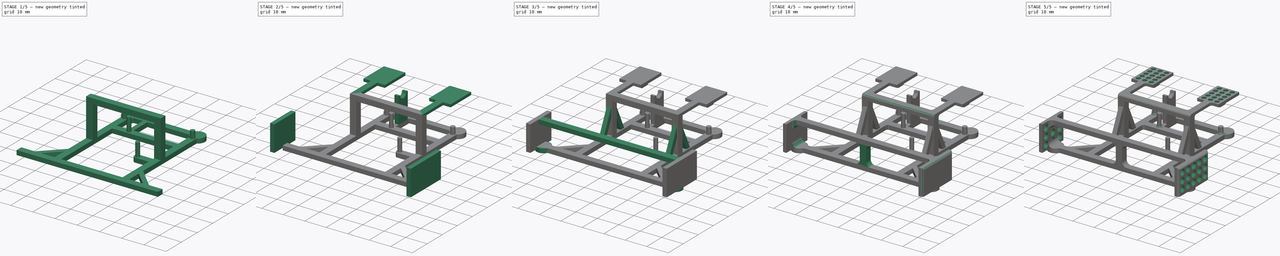
[diagram: build sequence overview — one tinted view per stage of 5, left to right]
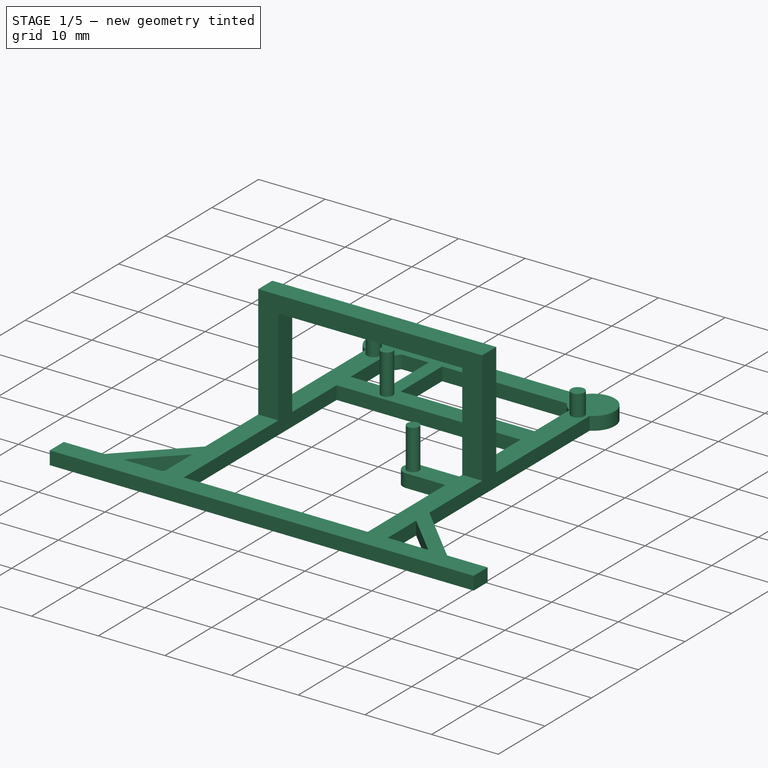
[diagram: stage 1 of 5 — iso view after this stage's code; geometry added in this stage tinted green]
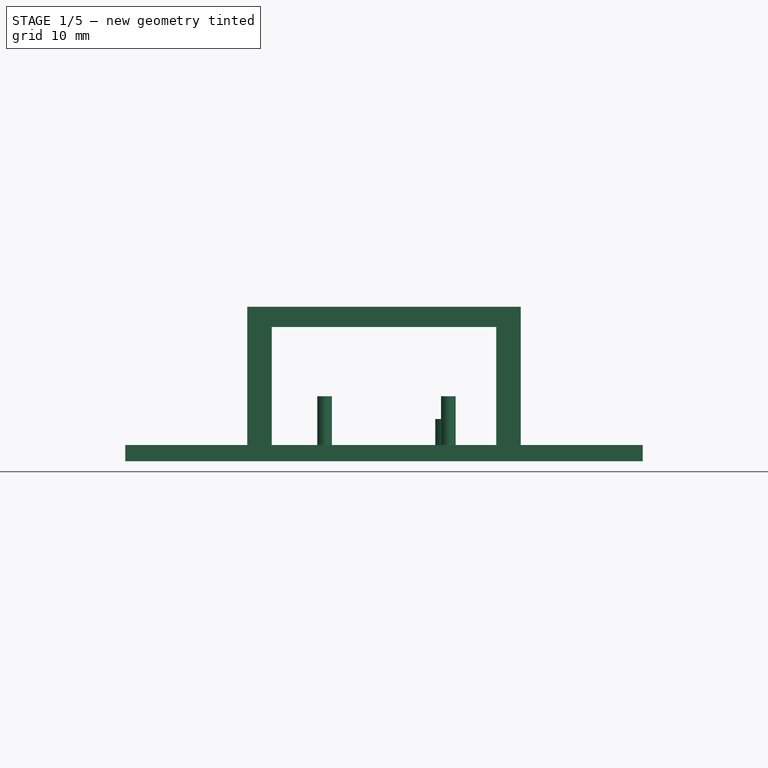
[diagram: stage 1 of 5 — front view after this stage's code; geometry added in this stage tinted green]
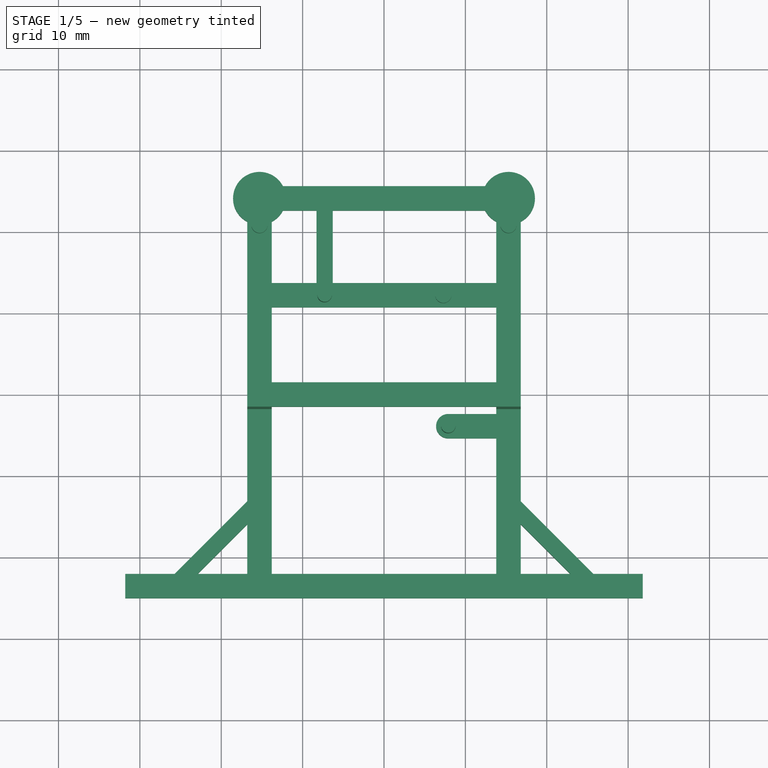
[diagram: stage 1 of 5 — top view after this stage's code; geometry added in this stage tinted green]
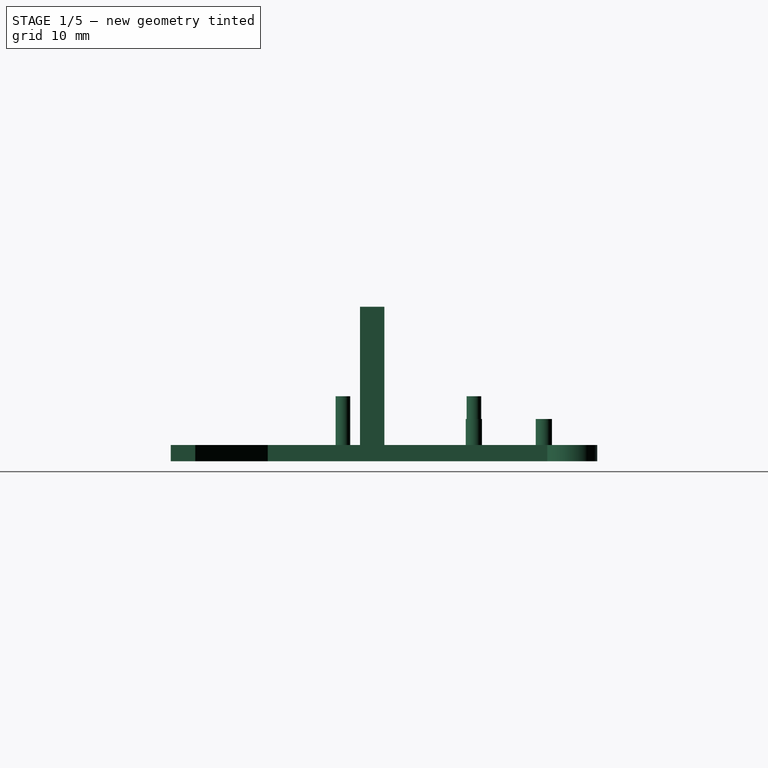
[diagram: stage 1 of 5 — right view after this stage's code; geometry added in this stage tinted green]
FCSTD DOCUMENT  (FreeCAD 1.0R39285 (Git))
Label: thin-7mm-holes
License: All rights reserved
LicenseURL: https://en.wikipedia.org/wiki/All_rights_reserved
objects: Part::Feature×49, Sketcher::SketchObject×21, PartDesign::Pad×17, PartDesign::Fillet×8, App::Part×5, PartDesign::Pocket×4, PartDesign::Body×1
note: 179 computed .brp shape members not serialized (recipe doc carries the construction recipe); baked Part::Feature solids carry a one-line shape summary decoded from their .brp

FEATURE [Sketcher::SketchObject] Sketch
  ArcFitTolerance = 1e-06
  AttachmentSupport = -> [XY_Plane]
  FullyConstrained = true
  MakeInternals = false
  MapMode = 5
  sketch-geometry (57):
    g0: GeomPoint X=16.8 Y=15.65 Z=0
    g1: GeomPoint X=-16.8 Y=-35 Z=0
    g2: LineSegment StartX=-16.8 StartY=15.65 StartZ=0 EndX=-16.8 EndY=-23.0858 EndZ=0
    g3: LineSegment StartX=-16.8 StartY=-35 StartZ=0 EndX=16.8 EndY=-35 EndZ=0
    g4: LineSegment StartX=16.8 StartY=-32 StartZ=0 EndX=16.8 EndY=-25.9142 EndZ=0
    g5: LineSegment StartX=16.8 StartY=15.65 StartZ=0 EndX=-16.8 EndY=15.65 EndZ=0
    g6: LineSegment StartX=13.8 StartY=12.65 StartZ=0 EndX=-6.3 EndY=12.65 EndZ=0
    g7: LineSegment StartX=-13.8 StartY=-32 StartZ=0 EndX=13.8 EndY=-32 EndZ=0
    g8: GeomPoint X=-7.3 Y=2.25 Z=0
    g9: GeomPoint X=7.3 Y=2.25 Z=0
    g10: Circle [constr] CenterX=-7.3 CenterY=2.25 CenterZ=0 NormalX=0 NormalY=0 NormalZ=1 AngleXU=0 Radius=1.5
    g11: LineSegment StartX=-13.8 StartY=3.75 StartZ=0 EndX=-8.3 EndY=3.75 EndZ=0
    g12: LineSegment StartX=-13.8 StartY=0.75 StartZ=0 EndX=13.8 EndY=0.75 EndZ=0
    g13: LineSegment StartX=-13.8 StartY=12.65 StartZ=0 EndX=-13.8 EndY=3.75 EndZ=0
    g14: LineSegment StartX=-13.8 StartY=0.75 StartZ=0 EndX=-13.8 EndY=-32 EndZ=0
    g15: LineSegment StartX=13.8 StartY=12.65 StartZ=0 EndX=13.8 EndY=3.75 EndZ=0
    g16: LineSegment StartX=13.8 StartY=0.75 StartZ=0 EndX=13.8 EndY=-12.35 EndZ=0
    g17: Circle [constr] CenterX=7.3 CenterY=2.25 CenterZ=0 NormalX=0 NormalY=0 NormalZ=1 AngleXU=0 Radius=1.5
    g18: GeomPoint X=-15.3 Y=10.85 Z=0
    g19: GeomPoint X=15.3 Y=10.85 Z=0
    g20: Circle [constr] CenterX=-15.3 CenterY=10.85 CenterZ=0 NormalX=0 NormalY=0 NormalZ=1 AngleXU=0 Radius=1
    g21: Circle [constr] CenterX=15.3 CenterY=10.85 CenterZ=0 NormalX=0 NormalY=0 NormalZ=1 AngleXU=0 Radius=1
    g22: GeomPoint X=16.8 Y=-35 Z=0
    g23: GeomPoint [constr] X=-16.8 Y=-35 Z=0
    g24: GeomPoint X=-16.8 Y=15.65 Z=0
    g25: GeomPoint [constr] X=16.8 Y=15.65 Z=0
    g26: LineSegment StartX=-8.3 StartY=12.65 StartZ=0 EndX=-8.3 EndY=3.75 EndZ=0
    g27: LineSegment StartX=-6.3 StartY=12.65 StartZ=0 EndX=-6.3 EndY=3.75 EndZ=0
    g28: LineSegment StartX=-8.3 StartY=12.65 StartZ=0 EndX=-13.8 EndY=12.65 EndZ=0
    g29: LineSegment StartX=-6.3 StartY=3.75 StartZ=0 EndX=13.8 EndY=3.75 EndZ=0
    g30: LineSegment StartX=7.9 StartY=-12.35 StartZ=0 EndX=13.8 EndY=-12.35 EndZ=0
    g31: LineSegment StartX=7.9 StartY=-15.35 StartZ=0 EndX=13.8 EndY=-15.35 EndZ=0
    g32: ArcOfCircle CenterX=7.9 CenterY=-13.85 CenterZ=0 NormalX=0 NormalY=0 NormalZ=1 AngleXU=0 Radius=1.5 StartAngle=1.5708 EndAngle=4.71239
    g33: LineSegment [constr] StartX=7.9 StartY=-12.35 StartZ=0 EndX=7.9 EndY=-15.35 EndZ=0
    g34: LineSegment StartX=13.8 StartY=-15.35 StartZ=0 EndX=13.8 EndY=-32 EndZ=0
    g35: LineSegment StartX=-31.8 StartY=-32 StartZ=0 EndX=-31.8 EndY=-35 EndZ=0
    g36: LineSegment StartX=-31.8 StartY=-35 StartZ=0 EndX=-16.8 EndY=-35 EndZ=0
    g37: LineSegment StartX=-16.8 StartY=-32 StartZ=0 EndX=-22.8858 EndY=-32 EndZ=0
    g38: LineSegment StartX=-25.7142 StartY=-32 StartZ=0 EndX=-16.8 EndY=-23.0858 EndZ=0
    g39: LineSegment StartX=-22.8858 StartY=-32 StartZ=0 EndX=-16.8 EndY=-25.9142 EndZ=0
    g40: GeomPoint [constr] X=-24.3 Y=-32 Z=0
    g41: LineSegment StartX=-25.7142 StartY=-32 StartZ=0 EndX=-31.8 EndY=-32 EndZ=0
    g42: LineSegment [constr] StartX=-25.7142 StartY=-32 StartZ=0 EndX=-22.8858 EndY=-32 EndZ=0
    g43: LineSegment StartX=-16.8 StartY=-25.9142 StartZ=0 EndX=-16.8 EndY=-32 EndZ=0
    g44: LineSegment [constr] StartX=-16.8 StartY=-23.0858 StartZ=0 EndX=-16.8 EndY=-25.9142 EndZ=0
    g45: LineSegment StartX=16.8 StartY=-35 StartZ=0 EndX=31.8 EndY=-35 EndZ=0
    g46: LineSegment StartX=31.8 StartY=-35 StartZ=0 EndX=31.8 EndY=-32 EndZ=0
    g47: LineSegment StartX=31.8 StartY=-32 StartZ=0 EndX=25.7142 EndY=-32 EndZ=0
    g48: LineSegment StartX=16.8 StartY=-25.9142 StartZ=0 EndX=22.8858 EndY=-32 EndZ=0
    g49: LineSegment StartX=16.8 StartY=-23.0858 StartZ=0 EndX=25.7142 EndY=-32 EndZ=0
    g50: LineSegment StartX=16.8 StartY=-23.0858 StartZ=0 EndX=16.8 EndY=15.65 EndZ=0
    g51: LineSegment StartX=22.8858 StartY=-32 StartZ=0 EndX=16.8 EndY=-32 EndZ=0
    g52: LineSegment [constr] StartX=16.8 StartY=-23.0858 StartZ=0 EndX=16.8 EndY=-25.9142 EndZ=0
    g53: LineSegment [constr] StartX=22.8858 StartY=-32 StartZ=0 EndX=25.7142 EndY=-32 EndZ=0
    g54: LineSegment [constr] StartX=-8.3 StartY=3.75 StartZ=0 EndX=-6.3 EndY=3.75 EndZ=0
    g55: GeomPoint [constr] X=-7.3 Y=3.75 Z=0
    g56: LineSegment [constr] StartX=-7.3 StartY=3.75 StartZ=0 EndX=-7.3 EndY=2.25 EndZ=0
  constraints (142):
    c: DistanceY(g-1,g24) = 15.65
    c: DistanceX(g24,g-1) = 16.8
    c: DistanceX(g24,g0) = 33.6
    c: DistanceY(g1,g-1) = 35
    c: DistanceX(g1,g22) = 33.6
    c: DistanceY(g22,g-1) = 35
    c: DistanceX(g1,g-1) = 16.8
    c: DistanceY(g-1,g0) = 15.65
    c: Vertical(g4)
    c: Horizontal(g3)
    c: Horizontal(g6)
    c: Distance(g28,g5) = 3
    c: Distance(g34,g3) = 3
    c: Horizontal(g7)
    c: DistanceX(g8,g-1) = 7.3
    c: DistanceY(g-1,g8) = 2.25
    c: Symmetric(g8,g9,g-2)
    c: Diameter(g10) = 3
    c: Coincident(g10,g8)
    c: Horizontal(g11)
    c: Horizontal(g12)
    c: Tangent(g10,g12)
    c: Vertical(g13)
    c: Coincident(g13,g28)
    c: Coincident(g13,g11)
    c: Vertical(g14)
    c: Coincident(g14,g12)
    c: Coincident(g14,g7)
    c: Vertical(g15)
    c: Coincident(g15,g6)
    c: Coincident(g15,g29)
    c: Vertical(g16)
    c: Coincident(g16,g12)
    c: Diameter(g17) = 3
    c: Coincident(g17,g9)
    c: DistanceX(g18,g-1) = 15.3
    c: DistanceY(g-1,g18) = 10.85
    c: Symmetric(g18,g19,g-2)
    c: Diameter(g20) = 2
    c: Coincident(g20,g18)
    c: Diameter(g21) = 2
    c: Coincident(g21,g19)
    c: PointOnObject(g23,g43)
    c: Vertical(g26)
    c: Vertical(g27)
    c: PointOnObject(g26,g28)
    c: Coincident(g6,g27)
    c: PointOnObject(g28,g26)
    c: Coincident(g11,g26)
    c: Coincident(g29,g27)
    c: Horizontal(g29)
    c: Horizontal(g28)
    c: Distance(g6,g5) = 3
    c: Tangent(g29,g17)
    c: Tangent(g11,g10)
    c: Coincident(g3,g23)
    c: Distance(g7,g2) = 3
    c: Coincident(g2,g24)
    c: Coincident(g5,g2)
    c: Distance(g13,g2) = 3
    c: Coincident(g5,g0)
    c: Coincident(g50,g25)
    c: Distance(g6,g4) = 3
    c: Coincident(g3,g22)
    c: Distance(g34,g4) = 3
    c: Coincident(g7,g34)
    c: Horizontal(g30)
    c: PointOnObject(g31,g34)
    c: Coincident(g32,g30)
    c: Coincident(g32,g31)
    c: Horizontal(g31)
    c: Radius(g32) = 1.5
    c: Angle(g32) = 3.14159
    c: Distance(g32,g-2) = 7.9
    c: Distance(g32,g-1) = 13.85
    c: Vertical(g33)
    c: Coincident(g33,g30)
    c: Coincident(g33,g31)
    c: Coincident(g16,g30)
    c: PointOnObject(g34,g31)
    c: Distance(g12,g4) = 3
    c: Vertical(g34)
    c: Coincident(g35,g36)
    c: Coincident(g41,g35)
    c: Vertical(g35)
    c: Horizontal(g36)
    c: Horizontal(g37)
    c: Coincident(g36,g1)
    c: Coincident(g37,g43)
    c: Vertical(g2)
    c: Distance(g43,g36) = 3
    c: DistanceX(g36,g36) = 15
    c: Angle(g37,g38) = 0.785398
    c: PointOnObject(g38,g41)
    c: Angle(g37,g39) = 0.785398
    c: Symmetric(g37,g41,g40)
    c: PointOnObject(g39,g43)
    c: Symmetric(g38,g39,g40)
    c: Distance(g39,g38) = 2
    c: PointOnObject(g37,g39)
    c: PointOnObject(g41,g38)
    c: Coincident(g42,g38)
    c: Coincident(g42,g37)
    c: Horizontal(g42)
    c: Coincident(g2,g38)
    c: PointOnObject(g43,g39)
    c: Coincident(g44,g2)
    c: Coincident(g44,g39)
    c: Vertical(g44)
    c: Vertical(g43)
    c: Horizontal(g41)
    c: Coincident(g45,g46)
    c: Coincident(g46,g47)
    c: Vertical(g46)
    c: Horizontal(g45)
    c: Horizontal(g47)
    c: Equal(g36,g45)
    c: Equal(g35,g46)
    c: Coincident(g45,g3)
    c: Coincident(g51,g4)
    c: Coincident(g50,g0)
    c: Symmetric(g49,g2,g-2)
    c: Symmetric(g48,g43,g-2)
    c: Symmetric(g48,g39,g-2)
    c: Symmetric(g49,g41,g-2)
    c: PointOnObject(g4,g48)
    c: PointOnObject(g47,g49)
    c: Coincident(g52,g49)
    c: Coincident(g52,g4)
    c: Vertical(g52)
    c: Coincident(g53,g48)
    c: Coincident(g53,g47)
    c: Horizontal(g51)
    c: Coincident(g51,g48)
    c: Coincident(g50,g49)
    c: Distance(g27,g26) = 2
    c: Coincident(g54,g11)
    c: Coincident(g54,g27)
    c: Symmetric(g54,g54,g55)
    c: Vertical(g56)
    c: Coincident(g56,g8)
    c: Coincident(g56,g55)
FEATURE [PartDesign::Pad] Pad
  Direction = (0,0,1)
  Length = 2
  Length2 = 10
  Profile = -> Sketch
  ReferenceAxis = -> Sketch [N_Axis]
  Refine = true
  Suppressed = false
  Type = 0
FEATURE [Sketcher::SketchObject] Sketch001
  ArcFitTolerance = 1e-06
  AttachmentSupport = -> [Pad]
  ExternalGeometry = -> [Sketch]
  FullyConstrained = true
  MakeInternals = false
  MapMode = 5
  Placement = pos=(0,0,0) rot=(1,0,0;3.14159rad)
  sketch-geometry (2):
    g0: Circle CenterX=7.9 CenterY=13.85 CenterZ=0 NormalX=0 NormalY=0 NormalZ=1 AngleXU=0 Radius=0.9
    g1: Circle CenterX=-7.3 CenterY=-2.25 CenterZ=0 NormalX=0 NormalY=0 NormalZ=1 AngleXU=0 Radius=0.9
  constraints (4):
    c: Diameter(g0) = 1.8
    c: Coincident(g0,g-3)
    c: Diameter(g1) = 1.8
    c: Coincident(g1,g-4)
FEATURE [PartDesign::Pad] Pad001
  BaseFeature = -> Pad
  Direction = (0,0,-1)
  Length = 8
  Length2 = 10
  Profile = -> Sketch001
  ReferenceAxis = -> Sketch001 [N_Axis]
  Refine = true
  Reversed = true
  Suppressed = false
  Type = 0
FEATURE [Sketcher::SketchObject] Sketch002
  ArcFitTolerance = 1e-06
  AttachmentSupport = -> [Pad001]
  ExternalGeometry = -> [Sketch]
  FullyConstrained = true
  MakeInternals = false
  MapMode = 5
  Placement = pos=(0,0,0) rot=(1,0,0;3.14159rad)
  sketch-geometry (3):
    g0: Circle CenterX=-15.3 CenterY=-10.85 CenterZ=0 NormalX=0 NormalY=0 NormalZ=1 AngleXU=0 Radius=1
    g1: Circle CenterX=15.3 CenterY=-10.85 CenterZ=0 NormalX=0 NormalY=0 NormalZ=1 AngleXU=0 Radius=1
    g2: Circle CenterX=7.3 CenterY=-2.25 CenterZ=0 NormalX=0 NormalY=0 NormalZ=1 AngleXU=0 Radius=1
  constraints (6):
    c: Diameter(g0) = 2
    c: Coincident(g0,g-3)
    c: Diameter(g1) = 2
    c: Coincident(g1,g-5)
    c: Diameter(g2) = 2
    c: Coincident(g2,g-4)
FEATURE [PartDesign::Pad] Pad002
  BaseFeature = -> Pad001
  Direction = (0,0,-1)
  Length = 5.2
  Length2 = 10
  Profile = -> Sketch002
  ReferenceAxis = -> Sketch002 [N_Axis]
  Refine = true
  Reversed = true
  Suppressed = false
  Type = 0
FEATURE [Sketcher::SketchObject] Sketch003
  ArcFitTolerance = 1e-06
  AttachmentSupport = -> [Pad002]
  ExternalGeometry = -> [Sketch]
  FullyConstrained = true
  MakeInternals = false
  MapMode = 5
  Placement = pos=(0,0,0) rot=(1,0,0;3.14159rad)
  sketch-geometry (12):
    g0: Circle CenterX=15.3 CenterY=-14.15 CenterZ=0 NormalX=0 NormalY=0 NormalZ=1 AngleXU=0 Radius=3.25
    g1: Circle CenterX=-15.3 CenterY=-14.15 CenterZ=0 NormalX=0 NormalY=0 NormalZ=1 AngleXU=0 Radius=3.25
    g2: LineSegment [constr] StartX=13.8 StartY=-15.65 StartZ=0 EndX=16.8 EndY=-15.65 EndZ=0
    g3: LineSegment [constr] StartX=16.8 StartY=-15.65 StartZ=0 EndX=16.8 EndY=-12.65 EndZ=0
    g4: LineSegment [constr] StartX=16.8 StartY=-12.65 StartZ=0 EndX=13.8 EndY=-12.65 EndZ=0
    g5: LineSegment [constr] StartX=13.8 StartY=-12.65 StartZ=0 EndX=13.8 EndY=-15.65 EndZ=0
    g6: LineSegment [constr] StartX=-16.8 StartY=-15.65 StartZ=0 EndX=-13.8 EndY=-15.65 EndZ=0
    g7: LineSegment [constr] StartX=-13.8 StartY=-15.65 StartZ=0 EndX=-13.8 EndY=-12.65 EndZ=0
    g8: LineSegment [constr] StartX=-13.8 StartY=-12.65 StartZ=0 EndX=-16.8 EndY=-12.65 EndZ=0
    g9: LineSegment [constr] StartX=-16.8 StartY=-12.65 StartZ=0 EndX=-16.8 EndY=-15.65 EndZ=0
    g10: GeomPoint [constr] X=-15.3 Y=-14.15 Z=0
    g11: GeomPoint [constr] X=15.3 Y=-14.15 Z=0
  constraints (26):
    c: Diameter(g0) = 6.5
    c: Diameter(g1) = 6.5
    c: Coincident(g2,g3)
    c: Coincident(g3,g4)
    c: Coincident(g4,g5)
    c: Coincident(g5,g2)
    c: Horizontal(g2)
    c: Horizontal(g4)
    c: Vertical(g3)
    c: Vertical(g5)
    c: Coincident(g4,g-3)
    c: Coincident(g6,g7)
    c: Coincident(g7,g8)
    c: Coincident(g8,g9)
    c: Coincident(g9,g6)
    c: Horizontal(g6)
    c: Horizontal(g8)
    c: Vertical(g7)
    c: Vertical(g9)
    c: Coincident(g6,g-5)
    c: Coincident(g7,g-4)
    c: Symmetric(g6,g7,g10)
    c: Coincident(g1,g10)
    c: Coincident(g2,g-6)
    c: Symmetric(g4,g2,g11)
    c: Coincident(g0,g11)
FEATURE [PartDesign::Pad] Pad003
  BaseFeature = -> Pad002
  Direction = (0,0,-1)
  Length = 2
  Length2 = 10
  Profile = -> Sketch003
  ReferenceAxis = -> Sketch003 [N_Axis]
  Refine = true
  Reversed = true
  Suppressed = false
  Type = 0
FEATURE [Sketcher::SketchObject] Sketch004
  ArcFitTolerance = 1e-06
  AttachmentSupport = -> [Pad003]
  FullyConstrained = true
  MakeInternals = false
  MapMode = 5
  Placement = pos=(0,0,2) rot=(0,0,1;0rad)
  sketch-geometry (8):
    g0: LineSegment StartX=-13.8 StartY=-11.75 StartZ=0 EndX=-13.8 EndY=-8.75 EndZ=0
    g1: LineSegment StartX=-16.8 StartY=-11.75 StartZ=0 EndX=-13.8 EndY=-11.75 EndZ=0
    g2: LineSegment StartX=-16.8 StartY=-11.75 StartZ=0 EndX=-16.8 EndY=-8.75 EndZ=0
    g3: LineSegment StartX=-16.8 StartY=-8.75 StartZ=0 EndX=-13.8 EndY=-8.75 EndZ=0
    g4: LineSegment StartX=13.8 StartY=-8.75 StartZ=0 EndX=13.8 EndY=-11.75 EndZ=0
    g5: LineSegment StartX=13.8 StartY=-11.75 StartZ=0 EndX=16.8 EndY=-11.75 EndZ=0
    g6: LineSegment StartX=16.8 StartY=-11.75 StartZ=0 EndX=16.8 EndY=-8.75 EndZ=0
    g7: LineSegment StartX=16.8 StartY=-8.75 StartZ=0 EndX=13.8 EndY=-8.75 EndZ=0
  constraints (22):
    c: Vertical(g0)
    c: Horizontal(g1)
    c: Coincident(g1,g0)
    c: Vertical(g2)
    c: Horizontal(g3)
    c: Coincident(g3,g2)
    c: Coincident(g3,g0)
    c: Coincident(g1,g2)
    c: DistanceY(g0,g-3) = 10
    c: DistanceY(g0,g0) = 3
    c: PointOnObject(g2,g-4)
    c: PointOnObject(g0,g-3)
    c: Coincident(g4,g5)
    c: Coincident(g5,g6)
    c: Coincident(g6,g7)
    c: Coincident(g7,g4)
    c: Vertical(g4)
    c: Vertical(g6)
    c: Horizontal(g5)
    c: Horizontal(g7)
    c: Symmetric(g0,g4,g-2)
    c: Symmetric(g1,g5,g-2)
FEATURE [PartDesign::Pad] Pad004
  BaseFeature = -> Pad003
  Direction = (0,0,1)
  Length = 17
  Length2 = 10
  Profile = -> Sketch004
  ReferenceAxis = -> Sketch004 [N_Axis]
  Refine = true
  Suppressed = false
  Type = 0
FEATURE [Sketcher::SketchObject] Sketch005
  ArcFitTolerance = 1e-06
  AttachmentSupport = -> [Pad004]
  ExternalGeometry = -> [Pad004]
  FullyConstrained = true
  MakeInternals = false
  MapMode = 5
  Placement = pos=(-13.8,0,0) rot=(0.57735,0.57735,0.57735;2.0944rad)
  sketch-geometry (4):
    g0: LineSegment StartX=-11.75 StartY=19 StartZ=0 EndX=-8.75 EndY=19 EndZ=0
    g1: LineSegment StartX=-11.75 StartY=19 StartZ=0 EndX=-11.75 EndY=16.5 EndZ=0
    g2: LineSegment StartX=-11.75 StartY=16.5 StartZ=0 EndX=-8.75 EndY=16.5 EndZ=0
    g3: LineSegment StartX=-8.75 StartY=16.5 StartZ=0 EndX=-8.75 EndY=19 EndZ=0
  constraints (11):
    c: Horizontal(g0)
    c: Vertical(g1)
    c: Horizontal(g2)
    c: Vertical(g3)
    c: Coincident(g1,g0)
    c: Coincident(g2,g1)
    c: Coincident(g3,g0)
    c: Coincident(g3,g2)
    c: DistanceX(g0,g0) = 3
    c: DistanceY(g1,g1) = 2.5
    c: Coincident(g0,g-3)
FEATURE [PartDesign::Pad] Pad005
  BaseFeature = -> Pad004
  Direction = (1,0,0)
  Length = 10
  Length2 = 10
  Profile = -> Sketch005
  ReferenceAxis = -> Sketch005 [N_Axis]
  Refine = true
  Suppressed = false
  Type = 3
  UpToFace = -> Pad004 [Face55]
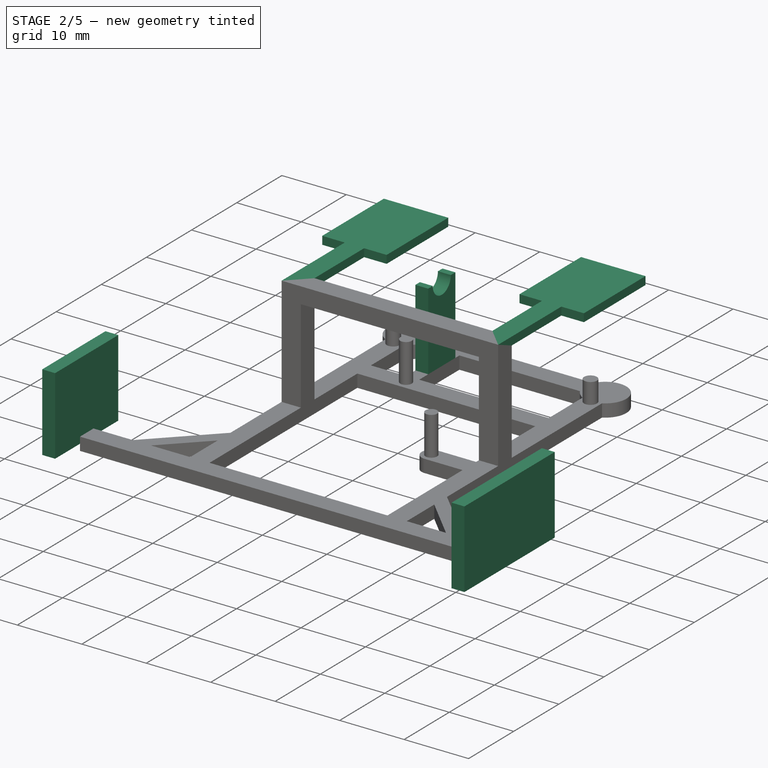
[diagram: stage 2 of 5 — iso view after this stage's code; geometry added in this stage tinted green]
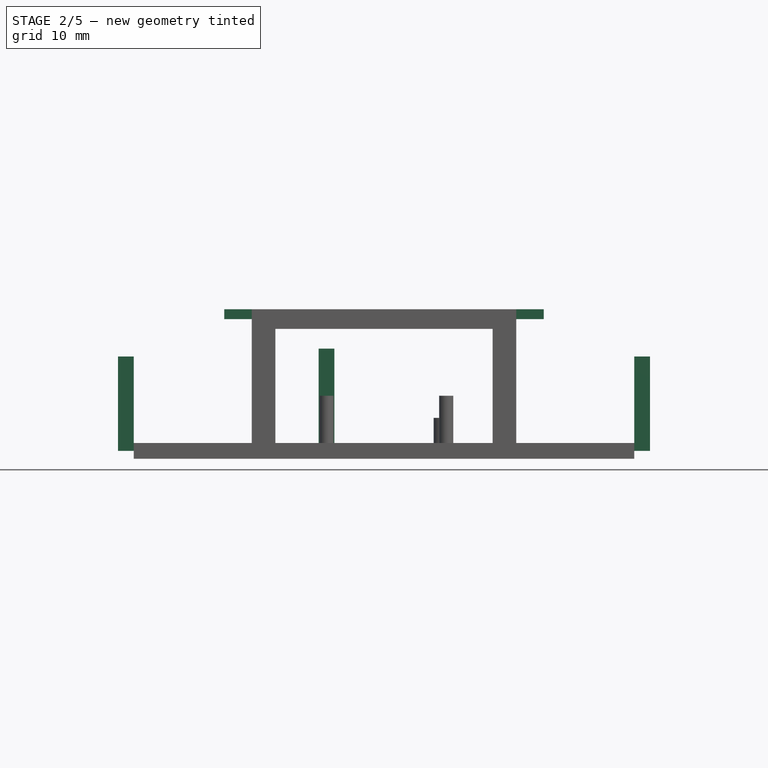
[diagram: stage 2 of 5 — front view after this stage's code; geometry added in this stage tinted green]
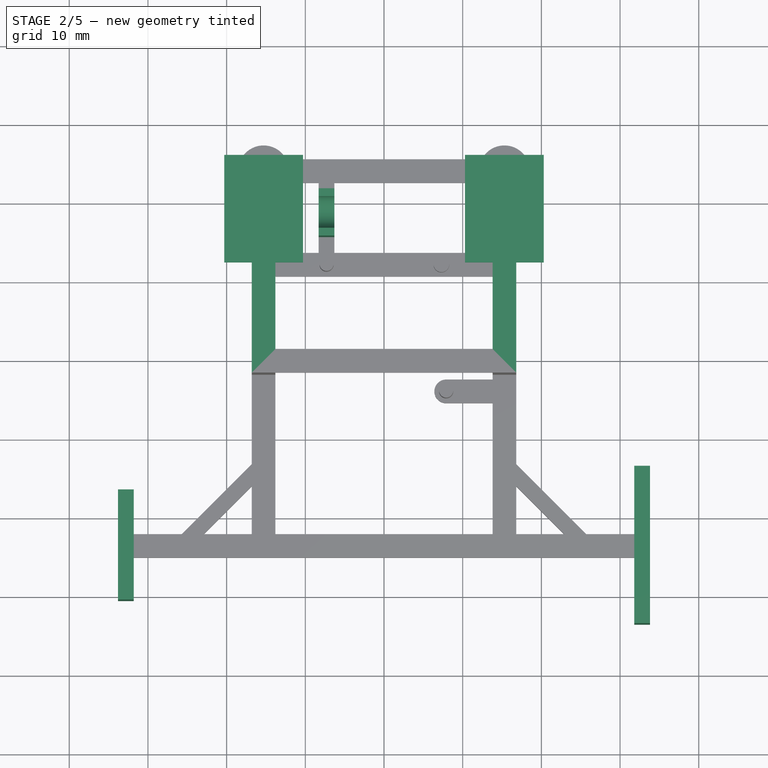
[diagram: stage 2 of 5 — top view after this stage's code; geometry added in this stage tinted green]
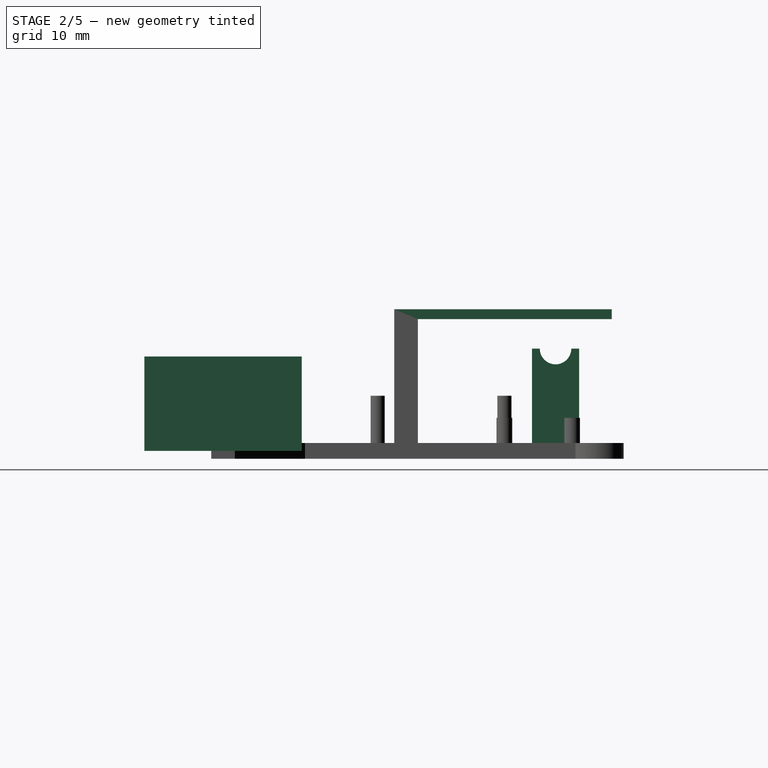
[diagram: stage 2 of 5 — right view after this stage's code; geometry added in this stage tinted green]
FEATURE [Sketcher::SketchObject] Sketch006
  ArcFitTolerance = 1e-06
  AttachmentSupport = -> [Pad005]
  ExternalGeometry = -> [Pad005]
  FullyConstrained = true
  MakeInternals = false
  MapMode = 5
  Placement = pos=(0,-8.75,0) rot=(0,0.707107,0.707107;3.14159rad)
  sketch-geometry (8):
    g0: LineSegment StartX=16.8 StartY=19 StartZ=0 EndX=13.8 EndY=19 EndZ=0
    g1: LineSegment StartX=13.8 StartY=19 StartZ=0 EndX=13.8 EndY=17.75 EndZ=0
    g2: LineSegment StartX=13.8 StartY=17.75 StartZ=0 EndX=16.8 EndY=17.75 EndZ=0
    g3: LineSegment StartX=16.8 StartY=17.75 StartZ=0 EndX=16.8 EndY=19 EndZ=0
    g4: LineSegment StartX=-16.8 StartY=19 StartZ=0 EndX=-16.8 EndY=17.75 EndZ=0
    g5: LineSegment StartX=-16.8 StartY=17.75 StartZ=0 EndX=-13.8 EndY=17.75 EndZ=0
    g6: LineSegment StartX=-13.8 StartY=17.75 StartZ=0 EndX=-13.8 EndY=19 EndZ=0
    g7: LineSegment StartX=-13.8 StartY=19 StartZ=0 EndX=-16.8 EndY=19 EndZ=0
  constraints (21):
    c: Horizontal(g0)
    c: Horizontal(g2)
    c: Vertical(g3)
    c: Vertical(g1)
    c: Coincident(g1,g0)
    c: Coincident(g2,g1)
    c: Coincident(g3,g0)
    c: Coincident(g3,g2)
    c: DistanceX(g0,g0) = 3
    c: DistanceY(g3,g3) = 1.25
    c: Coincident(g4,g5)
    c: Coincident(g5,g6)
    c: Coincident(g6,g7)
    c: Coincident(g7,g4)
    c: Vertical(g4)
    c: Vertical(g6)
    c: Horizontal(g5)
    c: Horizontal(g7)
    c: Coincident(g0,g-3)
    c: Symmetric(g6,g0,g-2)
    c: Symmetric(g4,g2,g-2)
FEATURE [PartDesign::Pad] Pad006
  BaseFeature = -> Pad005
  Direction = (0,1,-2e-16)
  Length = 11
  Length2 = 10
  Profile = -> Sketch006
  ReferenceAxis = -> Sketch006 [N_Axis]
  Refine = true
  Suppressed = false
  Type = 0
FEATURE [Sketcher::SketchObject] Sketch007
  ArcFitTolerance = 1e-06
  AttachmentSupport = -> [Pad006]
  ExternalGeometry = -> [Pad006]
  FullyConstrained = true
  MakeInternals = false
  MapMode = 5
  Placement = pos=(0,2.25,0) rot=(0,0.707107,0.707107;3.14159rad)
  sketch-geometry (12):
    g0: LineSegment [constr] StartX=16.8 StartY=19 StartZ=0 EndX=13.8 EndY=19 EndZ=0
    g1: LineSegment [constr] StartX=13.8 StartY=19 StartZ=0 EndX=13.8 EndY=17.75 EndZ=0
    g2: LineSegment [constr] StartX=13.8 StartY=17.75 StartZ=0 EndX=16.8 EndY=17.75 EndZ=0
    g3: LineSegment [constr] StartX=16.8 StartY=17.75 StartZ=0 EndX=16.8 EndY=19 EndZ=0
    g4: LineSegment StartX=10.3 StartY=19 StartZ=0 EndX=10.3 EndY=17.75 EndZ=0
    g5: LineSegment StartX=10.3 StartY=17.75 StartZ=0 EndX=20.3 EndY=17.75 EndZ=0
    g6: LineSegment StartX=20.3 StartY=17.75 StartZ=0 EndX=20.3 EndY=19 EndZ=0
    g7: LineSegment StartX=20.3 StartY=19 StartZ=0 EndX=10.3 EndY=19 EndZ=0
    g8: LineSegment StartX=-20.3 StartY=19 StartZ=0 EndX=-20.3 EndY=17.75 EndZ=0
    g9: LineSegment StartX=-20.3 StartY=17.75 StartZ=0 EndX=-10.3 EndY=17.75 EndZ=0
    g10: LineSegment StartX=-10.3 StartY=17.75 StartZ=0 EndX=-10.3 EndY=19 EndZ=0
    g11: LineSegment StartX=-10.3 StartY=19 StartZ=0 EndX=-20.3 EndY=19 EndZ=0
  constraints (30):
    c: Coincident(g0,g1)
    c: Coincident(g1,g2)
    c: Coincident(g2,g3)
    c: Coincident(g3,g0)
    c: Horizontal(g0)
    c: Horizontal(g2)
    c: Vertical(g1)
    c: Vertical(g3)
    c: Coincident(g4,g5)
    c: Coincident(g5,g6)
    c: Coincident(g6,g7)
    c: Coincident(g7,g4)
    c: Vertical(g4)
    c: Vertical(g6)
    c: Tangent(g7,g0)
    c: Tangent(g5,g2)
    c: Distance(g0,g4) = 3.5
    c: Distance(g0,g6) = 3.5
    c: Coincident(g0,g-3)
    c: Coincident(g1,g-4)
    c: Coincident(g8,g9)
    c: Coincident(g9,g10)
    c: Coincident(g10,g11)
    c: Coincident(g11,g8)
    c: Vertical(g8)
    c: Vertical(g10)
    c: Horizontal(g9)
    c: Horizontal(g11)
    c: Symmetric(g10,g4,g-2)
    c: Symmetric(g8,g5,g-2)
FEATURE [PartDesign::Pad] Pad007
  BaseFeature = -> Pad006
  Direction = (0,1,-2e-16)
  Length = 13.65
  Length2 = 10
  Profile = -> Sketch007
  ReferenceAxis = -> Sketch007 [N_Axis]
  Refine = true
  Suppressed = false
  Type = 0
FEATURE [Sketcher::SketchObject] Sketch008
  ArcFitTolerance = 1e-06
  AttachmentSupport = -> [Pad007]
  ExternalGeometry = -> [Sketch]
  FullyConstrained = true
  MakeInternals = false
  MapMode = 5
  Placement = pos=(0,0,0) rot=(1,0,0;3.14159rad)
  sketch-geometry (5):
    g0: LineSegment StartX=-8.3 StartY=-11.75 StartZ=0 EndX=-6.3 EndY=-11.75 EndZ=0
    g1: LineSegment StartX=-6.3 StartY=-11.75 StartZ=0 EndX=-6.3 EndY=-5.75 EndZ=0
    g2: LineSegment StartX=-6.3 StartY=-5.75 StartZ=0 EndX=-8.3 EndY=-5.75 EndZ=0
    g3: LineSegment StartX=-8.3 StartY=-5.75 StartZ=0 EndX=-8.3 EndY=-11.75 EndZ=0
    g4: GeomPoint [constr] X=-6.3 Y=-8.75 Z=0
  constraints (13):
    c: Coincident(g0,g1)
    c: Coincident(g1,g2)
    c: Coincident(g2,g3)
    c: Coincident(g3,g0)
    c: Horizontal(g0)
    c: Horizontal(g2)
    c: Vertical(g1)
    c: Vertical(g3)
    c: Symmetric(g1,g1,g4)
    c: Distance(g4,g-1) = 8.75
    c: DistanceY(g3,g3) = 6
    c: PointOnObject(g2,g-3)
    c: PointOnObject(g0,g-4)
FEATURE [PartDesign::Pad] Pad008
  BaseFeature = -> Pad007
  Direction = (0,0,-1)
  Length = 14
  Length2 = 10
  Profile = -> Sketch008
  ReferenceAxis = -> Sketch008 [N_Axis]
  Refine = true
  Reversed = true
  Suppressed = false
  Type = 0
FEATURE [Sketcher::SketchObject] Sketch009
  ArcFitTolerance = 1e-06
  AttachmentSupport = -> [Pad008]
  ExternalGeometry = -> [Pad008]
  FullyConstrained = true
  MakeInternals = false
  MapMode = 5
  Placement = pos=(-8.3,0,0) rot=(0.57735,-0.57735,-0.57735;2.0944rad)
  sketch-geometry (1):
    g0: Circle CenterX=-8.75 CenterY=14 CenterZ=0 NormalX=0 NormalY=0 NormalZ=1 AngleXU=0 Radius=2
  constraints (2):
    c: Diameter(g0) = 4
    c: Symmetric(g-3,g-4,g0)
FEATURE [PartDesign::Pocket] Pocket
  BaseFeature = -> Pad008
  Direction = (1,0,0)
  Length = 0
  Length2 = 5
  Profile = -> Sketch009
  ReferenceAxis = -> Sketch009 [N_Axis]
  Refine = true
  Suppressed = false
  Type = 2
FEATURE [Part::Feature] Part__Feature  label="C_0402_1005Metric"
  Placement = pos=(-0.25,11.55,1.55) rot=(0,0,1;1.5708rad)
  shape: bbox 0.5 x 1 x 0.5 mm, 28 faces (baked)
FEATURE [Part::Feature] Part__Feature001  label="C_0402_1005Metric001"
  Placement = pos=(4.4,10.85,1.55) rot=(0,0,1;1.5708rad)
  shape: bbox 0.5 x 1 x 0.5 mm, 28 faces (baked)
FEATURE [Part::Feature] Part__Feature002  label="C_0805_2012Metric"
  Placement = pos=(-7.3,-13.65,1.55) rot=(0,0,-1;1.5708rad)
  shape: bbox 1.25 x 2 x 1.25 mm, 28 faces (baked)
FEATURE [Part::Feature] Part__Feature003  label="R_0402_1005Metric"
  Placement = pos=(-7.1,-7.95,1.55) rot=(0,0,-1;1.5708rad)
  shape: bbox 0.5 x 1 x 0.35 mm, 26 faces (baked)
FEATURE [Part::Feature] Part__Feature004  label="DFN-6-1EP_2x2mm_P0.65mm_EP1x1.6mm"
  Placement = pos=(4.3,1.55,1.55) rot=(0,0,1;3.14159rad)
  shape: bbox 2 x 1.98 x 0.64 mm, 50 faces (baked)
FEATURE [Part::Feature] Part__Feature005  label="C_0201_0603Metric"
  Placement = pos=(1.4,10.75,1.55) rot=(0,0,1;3.14159rad)
  shape: bbox 0.6 x 0.3 x 0.3 mm, 28 faces (baked)
FEATURE [Part::Feature] Part__Feature006  label="nrf52820_hiiri 1.7"
  Placement = pos=(6.79765,8.77,10.619) rot=(0.57735,0.57735,0.57735;2.0944rad)
  shape: bbox 6.1 x 11.14 x 16.1 mm, 397 faces (baked)
FEATURE [Part::Feature] Part__Feature007  label="R_0402_1005Metric001"
  Placement = pos=(-7,-4.45,1.55) rot=(0,0,-1;1.5708rad)
  shape: bbox 0.5 x 1 x 0.35 mm, 26 faces (baked)
FEATURE [Part::Feature] Part__Feature008  label="C_0201_0603Metric001"
  Placement = pos=(1.5,12.95,1.55) rot=(0,0,1;3.14159rad)
  shape: bbox 0.6 x 0.3 x 0.3 mm, 28 faces (baked)
FEATURE [Part::Feature] Part__Feature009  label="C_0402_1005Metric002"
  Placement = pos=(-3.4,4.15,1.55) rot=(0,0,-1;1.5708rad)
  shape: bbox 0.5 x 1 x 0.5 mm, 28 faces (baked)
FEATURE [Part::Feature] Part__Feature010  label="R_0201_0603Metric"
  Placement = pos=(0.4,13.25,1.55) rot=(0,0,-1;1.5708rad)
  shape: bbox 0.3 x 0.6 x 0.23 mm, 26 faces (baked)
FEATURE [Part::Feature] Part__Feature011  label="R_0201_0603Metric001"
  Placement = pos=(0.7,14.35,1.55) rot=(0,0,1;0rad)
  shape: bbox 0.6 x 0.3 x 0.23 mm, 26 faces (baked)
FEATURE [Part::Feature] Part__Feature012  label="D2F_01F_BASE"
  shape: bbox 12.8 x 10 x 5.8 mm, 33 faces (baked)
FEATURE [Part::Feature] Part__Feature013  label="D2F_01F_ACTUATOR"
  Placement = pos=(-5.2,6,0) rot=(0,0,1;0rad)
  shape: bbox 1.2 x 3.5 x 2.9 mm, 6 faces (baked)
FEATURE [App::Part] D2F_01F
  Group = -> [Part__Feature012,Part__Feature013]
  Origin = -> Origin001
  Placement = pos=(15.3,5,3.05) rot=(0.57735,-0.57735,-0.57735;2.0944rad)
FEATURE [Part::Feature] Part__Feature014  label="C_0402_1005Metric003"
  Placement = pos=(7.25,-8.05,1.55) rot=(0,0,1;0rad)
  shape: bbox 1 x 0.5 x 0.5 mm, 28 faces (baked)
FEATURE [Part::Feature] Part__Feature015  label="C_0603_1608Metric"
  Placement = pos=(7.05,-5.05,1.55) rot=(0,0,-1;1.5708rad)
  shape: bbox 0.8 x 1.6 x 0.8 mm, 28 faces (baked)
FEATURE [Part::Feature] Part__Feature016  label="C_0603_1608Metric001"
  Placement = pos=(7.05,-11.1,1.55) rot=(0,0,-1;1.5708rad)
  shape: bbox 0.8 x 1.6 x 0.8 mm, 28 faces (baked)
FEATURE [Part::Feature] Part__Feature017  label="R_0402_1005Metric002"
  Placement = pos=(9.8,2.05,1.55) rot=(0,0,1;0rad)
  shape: bbox 1 x 0.5 x 0.35 mm, 26 faces (baked)
FEATURE [Part::Feature] Part__Feature018  label="C_0402_1005Metric004"
  Placement = pos=(-3.6,9.55,1.55) rot=(0,0,1;3.14159rad)
  shape: bbox 1 x 0.5 x 0.5 mm, 28 faces (baked)
FEATURE [Part::Feature] Part__Feature019  label="R_0603_1608Metric"
  Placement = pos=(-7.1,-10.45,1.55) rot=(0,0,-1;1.5708rad)
  shape: bbox 0.8 x 1.6 x 0.45 mm, 26 faces (baked)
FEATURE [Part::Feature] Part__Feature020  label="C_0402_1005Metric005"
  Placement = pos=(6.8,-2.65,1.55) rot=(0,0,1;1.5708rad)
  shape: bbox 0.5 x 1 x 0.5 mm, 28 faces (baked)
FEATURE [Part::Feature] Part__Feature021  label="C_0402_1005Metric006"
  Placement = pos=(0.7,1.15,1.55) rot=(0,0,-1;1.5708rad)
  shape: bbox 0.5 x 1 x 0.5 mm, 28 faces (baked)
FEATURE [Part::Feature] Part__Feature022  label="L_0201_0603Metric"
  Placement = pos=(1.8,11.85,1.55) rot=(0,0,-1;1.5708rad)
  shape: bbox 0.3 x 0.6 x 0.3 mm, 28 faces (baked)
FEATURE [Part::Feature] Part__Feature023  label="C_0402_1005Metric007"
  Placement = pos=(3.3,11.3,1.55) rot=(0,0,1;1.5708rad)
  shape: bbox 0.5 x 1 x 0.5 mm, 28 faces (baked)
FEATURE [Part::Feature] Part__Feature024  label="LED_0603_1608Metric"
  Placement = pos=(-1.7,1,1.55) rot=(0,0,1;3.14159rad)
  shape: bbox 1.6 x 0.8 x 1.1 mm, 50 faces (baked)
FEATURE [Part::Feature] Part__Feature025  label="C_0402_1005Metric008"
  Placement = pos=(7.25,-7.05,1.55) rot=(0,0,1;0rad)
  shape: bbox 1 x 0.5 x 0.5 mm, 28 faces (baked)
FEATURE [Part::Feature] Part__Feature026  label="C_0402_1005Metric009"
  Placement = pos=(2.15,1.15,1.55) rot=(0,0,-1;1.5708rad)
  shape: bbox 0.5 x 1 x 0.5 mm, 28 faces (baked)
FEATURE [Part::Feature] Part__Feature027  label="R_0402_1005Metric003"
  Placement = pos=(6.9,0.75,1.55) rot=(0,0,1;0rad)
  shape: bbox 1 x 0.5 x 0.35 mm, 26 faces (baked)
FEATURE [Part::Feature] Part__Feature028  label="QFN-40-1EP_5x5mm_P0.4mm_EP3.6x3.6mm"
  Placement = pos=(0.7,7.25,1.55) rot=(0,0,1;1.5708rad)
  shape: bbox 5 x 5 x 0.77 mm, 254 faces (baked)
FEATURE [Part::Feature] Part__Feature029  label="C_0402_1005Metric010"
  Placement = pos=(3.95,3.35,1.55) rot=(0,0,1;0rad)
  shape: bbox 1 x 0.5 x 0.5 mm, 28 faces (baked)
FEATURE [Part::Feature] Part__Feature030  label="R_0402_1005Metric004"
  Placement = pos=(1.1,3,1.55) rot=(0,0,1;1.5708rad)
  shape: bbox 0.5 x 1 x 0.35 mm, 26 faces (baked)
FEATURE [Part::Feature] Part__Feature031  label="C_0402_1005Metric011"
  Placement = pos=(6.45,2.15,1.55) rot=(0,0,1;1.5708rad)
  shape: bbox 0.5 x 1 x 0.5 mm, 28 faces (baked)
FEATURE [Part::Feature] Part__Feature032  label="C_0402_1005Metric012"
  Placement = pos=(-1.2,11.55,1.55) rot=(0,0,1;1.5708rad)
  shape: bbox 0.5 x 1 x 0.5 mm, 28 faces (baked)
FEATURE [Part::Feature] Part__Feature033  label="C_0402_1005Metric013"
  Placement = pos=(-2.86,6.85,1.55) rot=(0,0,1;1.5708rad)
  shape: bbox 0.5 x 1 x 0.5 mm, 28 faces (baked)
FEATURE [Part::Feature] Part__Feature034  label="L_0201_0603Metric001"
  Placement = pos=(1.8,14.05,1.55) rot=(0,0,-1;1.5708rad)
  shape: bbox 0.3 x 0.6 x 0.3 mm, 28 faces (baked)
FEATURE [Part::Feature] Part__Feature035  label="C_0402_1005Metric014"
  Placement = pos=(-4.4,11.45,1.55) rot=(0,0,-1;1.5708rad)
  shape: bbox 0.5 x 1 x 0.5 mm, 28 faces (baked)
FEATURE [Part::Feature] Part__Feature036  label="R_0201_0603Metric002"
  Placement = pos=(2.9,14.35,1.55) rot=(0,0,1;0rad)
  shape: bbox 0.6 x 0.3 x 0.23 mm, 26 faces (baked)
FEATURE [Part::Feature] Part__Feature037  label="Body001"
  shape: bbox 1.6 x 1.2 x 0.3 mm, 39 faces (baked)
FEATURE [Part::Feature] Part__Feature038  label="Pins"
  Placement = pos=(-0.145203,-0.0434717,0) rot=(0,0,1;0rad)
  shape: bbox 0.575 x 0.475 x 0.15 mm, 9 faces (baked)
FEATURE [Part::Feature] Part__Feature039  label="Pins001"
  Placement = pos=(-0.145203,-0.0434717,0) rot=(0,0,1;0rad)
  shape: bbox 0.575 x 0.475 x 0.15 mm, 9 faces (baked)
FEATURE [Part::Feature] Part__Feature040  label="Pins002"
  Placement = pos=(-0.145203,-0.0434717,0) rot=(0,0,1;0rad)
  shape: bbox 0.575 x 0.475 x 0.15 mm, 9 faces (baked)
FEATURE [Part::Feature] Part__Feature041  label="Pins003"
  Placement = pos=(-0.145203,-0.0434717,0) rot=(0,0,1;0rad)
  shape: bbox 0.575 x 0.475 x 0.15 mm, 10 faces (baked)
FEATURE [App::Part] Pins  label="Pins004"
  Group = -> [Part__Feature038,Part__Feature039,Part__Feature040,Part__Feature041]
  Origin = -> Origin002
FEATURE [Part::Feature] Part__Feature042  label="Cover"
  Placement = pos=(0,0,0.3) rot=(0,0,1;0rad)
  shape: bbox 1.68 x 1.28 x 0.1199 mm, 77 faces (baked)
FEATURE [App::Part] XTAL_SMD1612
  Group = -> [Part__Feature037,Pins,Part__Feature042]
  Origin = -> Origin003
  Placement = pos=(-2.8,11.3,1.55) rot=(0,0,1;3.14159rad)
FEATURE [Part::Feature] Part__Feature043  label="C_0402_1005Metric015"
  Placement = pos=(7.25,-9.05,1.55) rot=(0,0,1;0rad)
  shape: bbox 1 x 0.5 x 0.5 mm, 28 faces (baked)
FEATURE [Part::Feature] Part__Feature044  label="R_0402_1005Metric005"
  Placement = pos=(-5.55,3.2,1.55) rot=(0,0,-1;1.5708rad)
  shape: bbox 0.5 x 1 x 0.35 mm, 26 faces (baked)
FEATURE [Part::Feature] Part__Feature045  label="C_0402_1005Metric016"
  Placement = pos=(-2,3.65,1.55) rot=(0,0,1;3.14159rad)
  shape: bbox 1 x 0.5 x 0.5 mm, 28 faces (baked)
FEATURE [Part::Feature] Part__Feature046  label="D2F_01F_BASE001"
  shape: bbox 12.8 x 10 x 5.8 mm, 33 faces (baked)
FEATURE [Part::Feature] Part__Feature047  label="D2F_01F_ACTUATOR001"
  Placement = pos=(-5.2,6,0) rot=(0,0,1;0rad)
  shape: bbox 1.2 x 3.5 x 2.9 mm, 6 faces (baked)
FEATURE [App::Part] D2F_01F001
  Group = -> [Part__Feature046,Part__Feature047]
  Origin = -> Origin004
  Placement = pos=(-15.3,5,3.05) rot=(0.57735,-0.57735,-0.57735;2.0944rad)
FEATURE [Part::Feature] Part__Feature048  label="nrf52820_hiiri_PCB"
  shape: bbox 34.2 x 31.3 x 1.465 mm, 108 faces (baked)
FEATURE [App::Part] nrf52820_hiiri_1  label="nrf52820_hiiri 1"
  Group = -> [Part__Feature,Part__Feature001,Part__Feature002,Part__Feature003,Part__Feature004,Part__Feature005,Part__Feature006,Part__Feature007,Part__Feature008,Part__Feature009,Part__Feature010,Part__Feature011,D2F_01F,Part__Feature014,Part__Feature015,Part__Feature016,Part__Feature017,Part__Feature018,Part__Feature019,Part__Feature020,Part__Feature021,Part__Feature022,Part__Feature023,Part__Feature024,+18 more]
  Origin = -> Origin005
  Placement = pos=(0,0,5) rot=(0,0,1;0rad)
FEATURE [Sketcher::SketchObject] Sketch010
  ArcFitTolerance = 1e-06
  AttachmentSupport = -> [Pocket]
  ExternalGeometry = -> [Sketch,Pocket]
  FullyConstrained = true
  MakeInternals = false
  MapMode = 5
  Placement = pos=(-31.8,0,0) rot=(0.57735,-0.57735,-0.57735;2.0944rad)
  sketch-geometry (5):
    g0: LineSegment StartX=26.5 StartY=13 StartZ=0 EndX=26.5 EndY=1 EndZ=0
    g1: LineSegment StartX=26.5 StartY=1 StartZ=0 EndX=40.5 EndY=1 EndZ=0
    g2: LineSegment StartX=40.5 StartY=1 StartZ=0 EndX=40.5 EndY=13 EndZ=0
    g3: LineSegment StartX=40.5 StartY=13 StartZ=0 EndX=26.5 EndY=13 EndZ=0
    g4: GeomPoint X=33.5 Y=1 Z=0
  constraints (12):
    c: Coincident(g0,g1)
    c: Coincident(g1,g2)
    c: Coincident(g2,g3)
    c: Coincident(g3,g0)
    c: Vertical(g0)
    c: Vertical(g2)
    c: Horizontal(g1)
    c: Horizontal(g3)
    c: Symmetric(g1,g1,g4)
    c: DistanceX(g3,g3) = 14
    c: DistanceY(g2,g2) = 12
    c: Symmetric(g-4,g-3,g4)
FEATURE [PartDesign::Pad] Pad009
  BaseFeature = -> Pocket
  Direction = (-1,0,0)
  Length = 2
  Length2 = 10
  Profile = -> Sketch010
  ReferenceAxis = -> Sketch010 [N_Axis]
  Refine = true
  Suppressed = false
  Type = 0
FEATURE [Sketcher::SketchObject] Sketch011
  ArcFitTolerance = 1e-06
  AttachmentSupport = -> [Pad009]
  ExternalGeometry = -> [Sketch,Pad009]
  FullyConstrained = true
  MakeInternals = false
  MapMode = 5
  Placement = pos=(31.8,0,0) rot=(0.57735,0.57735,0.57735;2.0944rad)
  sketch-geometry (5):
    g0: LineSegment StartX=-43.5 StartY=13 StartZ=0 EndX=-43.5 EndY=1 EndZ=0
    g1: LineSegment StartX=-43.5 StartY=1 StartZ=0 EndX=-23.5 EndY=1 EndZ=0
    g2: LineSegment StartX=-23.5 StartY=1 StartZ=0 EndX=-23.5 EndY=13 EndZ=0
    g3: LineSegment StartX=-23.5 StartY=13 StartZ=0 EndX=-43.5 EndY=13 EndZ=0
    g4: GeomPoint X=-33.5 Y=1 Z=0
  constraints (12):
    c: Coincident(g0,g1)
    c: Coincident(g1,g2)
    c: Coincident(g2,g3)
    c: Coincident(g3,g0)
    c: Vertical(g0)
    c: Vertical(g2)
    c: Horizontal(g1)
    c: Horizontal(g3)
    c: Symmetric(g1,g1,g4)
    c: DistanceX(g3,g3) = 20
    c: DistanceY(g0,g0) = 12
    c: Symmetric(g-4,g-3,g4)
FEATURE [PartDesign::Pad] Pad010
  BaseFeature = -> Pad009
  Direction = (1,0,0)
  Length = 2
  Length2 = 10
  Profile = -> Sketch011
  ReferenceAxis = -> Sketch011 [N_Axis]
  Refine = true
  Suppressed = false
  Type = 0
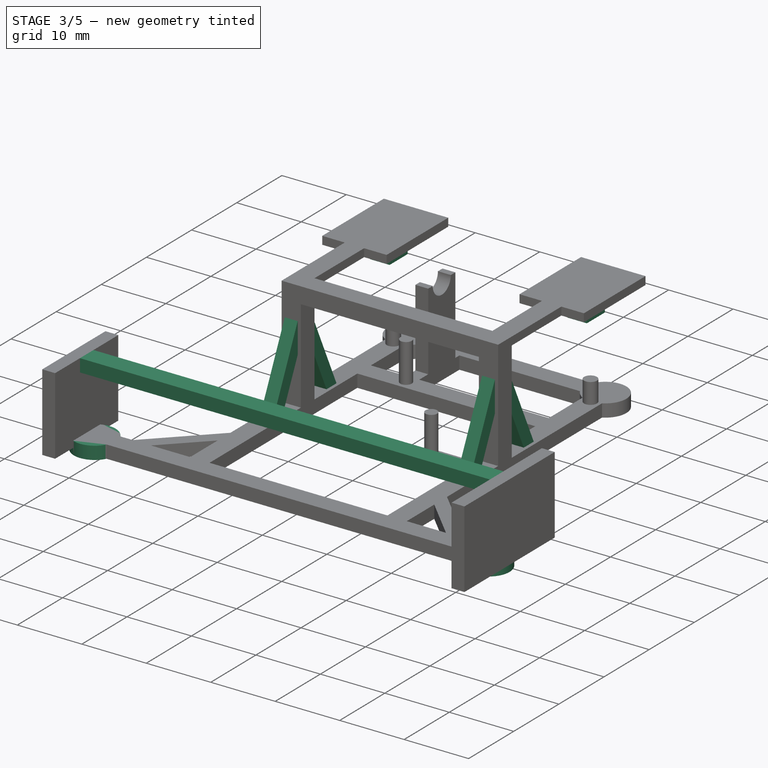
[diagram: stage 3 of 5 — iso view after this stage's code; geometry added in this stage tinted green]
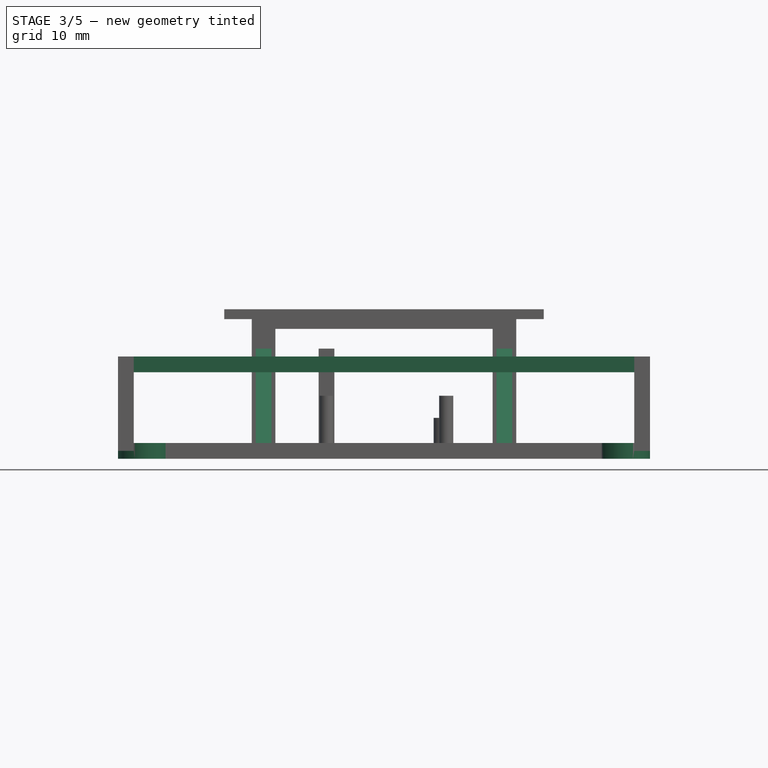
[diagram: stage 3 of 5 — front view after this stage's code; geometry added in this stage tinted green]
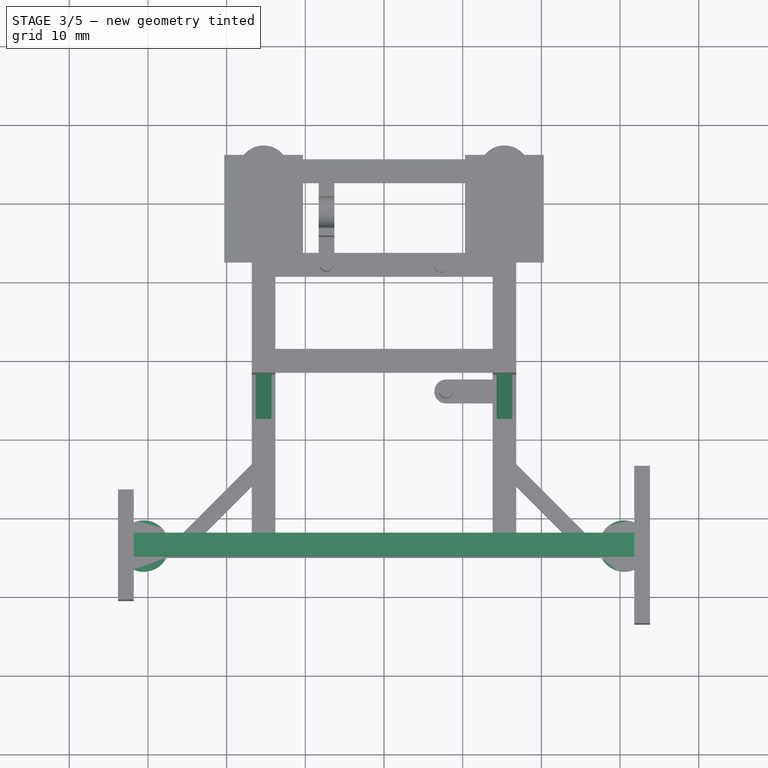
[diagram: stage 3 of 5 — top view after this stage's code; geometry added in this stage tinted green]
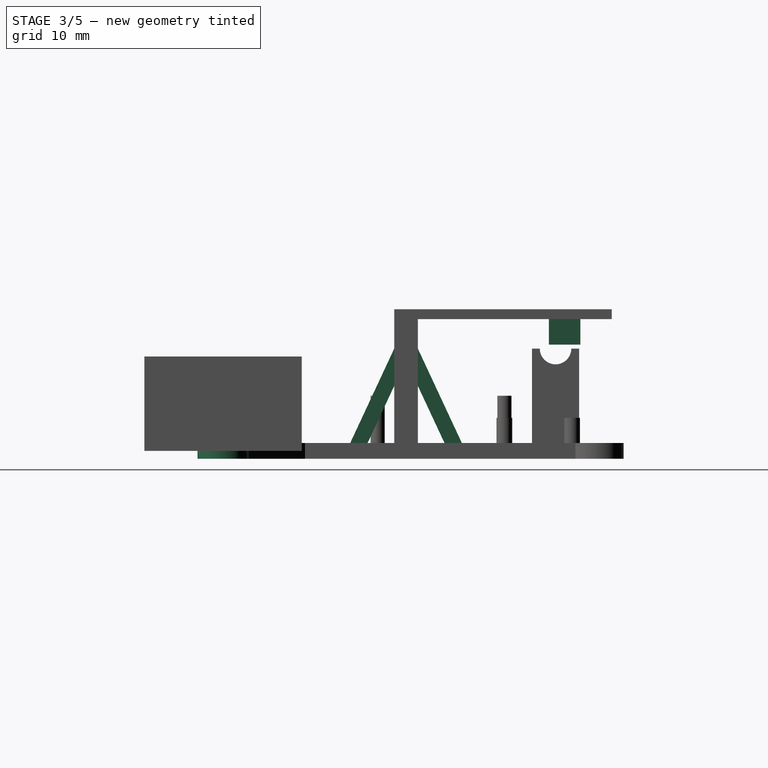
[diagram: stage 3 of 5 — right view after this stage's code; geometry added in this stage tinted green]
FEATURE [Sketcher::SketchObject] Sketch019
  ArcFitTolerance = 1e-06
  AttachmentOffset = pos=(0,0,-1.5) rot=(0,0,1;0rad)
  AttachmentSupport = -> [Pad010]
  ExternalGeometry = -> [Pad010]
  FullyConstrained = true
  MakeInternals = false
  MapMode = 5
  Placement = pos=(-15.3,0,0) rot=(0.57735,-0.57735,-0.57735;2.0944rad)
  sketch-geometry (11):
    g0: LineSegment StartX=3.15431 StartY=2 StartZ=0 EndX=8.75 EndY=14 EndZ=0
    g1: LineSegment StartX=5.36106 StartY=2 StartZ=0 EndX=8.75 EndY=9.2676 EndZ=0
    g2: LineSegment StartX=8.75 StartY=14 StartZ=0 EndX=8.75 EndY=9.2676 EndZ=0
    g3: LineSegment StartX=3.15431 StartY=2 StartZ=0 EndX=5.36106 EndY=2 EndZ=0
    g4: GeomPoint [constr] X=4.25769 Y=2 Z=0
    g5: LineSegment StartX=15.1389 StartY=2 StartZ=0 EndX=11.75 EndY=9.2676 EndZ=0
    g6: LineSegment StartX=17.3457 StartY=2 StartZ=0 EndX=11.75 EndY=14 EndZ=0
    g7: LineSegment StartX=11.75 StartY=9.2676 StartZ=0 EndX=11.75 EndY=14 EndZ=0
    g8: LineSegment StartX=15.1389 StartY=2 StartZ=0 EndX=17.3457 EndY=2 EndZ=0
    g9: LineSegment [constr] StartX=11.75 StartY=2 StartZ=0 EndX=27 EndY=2 EndZ=0
    g10: LineSegment [constr] StartX=8.75 StartY=14 StartZ=0 EndX=11.75 EndY=14 EndZ=0
  constraints (29):
    c: Horizontal(g3)
    c: Vertical(g2)
    c: Coincident(g0,g3)
    c: Coincident(g1,g3)
    c: Coincident(g2,g0)
    c: Coincident(g2,g1)
    c: Symmetric(g3,g3,g4)
    c: Distance(g1,g0) = 2
    c: Vertical(g7)
    c: Horizontal(g8)
    c: Coincident(g5,g8)
    c: Coincident(g5,g7)
    c: Coincident(g8,g6)
    c: Coincident(g9,g-3)
    c: PointOnObject(g5,g9)
    c: Angle(g5,g9) = 1.13446
    c: Angle(g6,g9) = 1.13446
    c: Distance(g6,g5) = 2
    c: Coincident(g6,g7)
    c: PointOnObject(g0,g-4)
    c: Horizontal(g10)
    c: Coincident(g10,g0)
    c: Coincident(g10,g6)
    c: PointOnObject(g1,g-5)
    c: Angle(g-5,g1) = 1.13446
    c: Angle(g3,g0) = 1.13446
    c: PointOnObject(g6,g-6)
    c: Coincident(g9,g-6)
    c: DistanceY(g6,g-6) = 5
FEATURE [PartDesign::Pad] Pad015
  BaseFeature = -> Pad010
  Direction = (-1,0,0)
  Length = 2
  Length2 = 10
  Midplane = true
  Profile = -> Sketch019
  ReferenceAxis = -> Sketch019 [N_Axis]
  Refine = true
  Suppressed = false
  Type = 0
FEATURE [Sketcher::SketchObject] Sketch020
  ArcFitTolerance = 1e-06
  AttachmentOffset = pos=(0,0,1.5) rot=(0,0,1;0rad)
  AttachmentSupport = -> [Pad015]
  FullyConstrained = true
  MakeInternals = false
  MapMode = 5
  Placement = pos=(15.3,0,0) rot=(0.57735,-0.57735,-0.57735;2.0944rad)
  sketch-geometry (11):
    g0: LineSegment StartX=3.15431 StartY=2 StartZ=0 EndX=8.75 EndY=14 EndZ=0
    g1: LineSegment StartX=5.36106 StartY=2 StartZ=0 EndX=8.75 EndY=9.2676 EndZ=0
    g2: LineSegment StartX=8.75 StartY=14 StartZ=0 EndX=8.75 EndY=9.2676 EndZ=0
    g3: LineSegment StartX=3.15431 StartY=2 StartZ=0 EndX=5.36106 EndY=2 EndZ=0
    g4: GeomPoint [constr] X=4.25769 Y=2 Z=0
    g5: LineSegment StartX=15.1389 StartY=2 StartZ=0 EndX=11.75 EndY=9.2676 EndZ=0
    g6: LineSegment StartX=17.3457 StartY=2 StartZ=0 EndX=11.75 EndY=14 EndZ=0
    g7: LineSegment StartX=11.75 StartY=9.2676 StartZ=0 EndX=11.75 EndY=14 EndZ=0
    g8: LineSegment StartX=15.1389 StartY=2 StartZ=0 EndX=17.3457 EndY=2 EndZ=0
    g9: LineSegment [constr] StartX=11.75 StartY=2 StartZ=0 EndX=27 EndY=2 EndZ=0
    g10: LineSegment [constr] StartX=8.75 StartY=14 StartZ=0 EndX=11.75 EndY=14 EndZ=0
  constraints (29):
    c: Horizontal(g3)
    c: Vertical(g2)
    c: Coincident(g0,g3)
    c: Coincident(g1,g3)
    c: Coincident(g2,g1)
    c: Symmetric(g3,g3,g4)
    c: PointOnObject(g1,g-4)
    c: Angle(g-4,g1) = 1.13446
    c: Angle(g-4,g0) = 1.13446
    c: Distance(g1,g0) = 2
    c: Vertical(g7)
    c: Horizontal(g8)
    c: Coincident(g5,g8)
    c: Coincident(g5,g7)
    c: Coincident(g8,g6)
    c: Coincident(g9,g-5)
    c: Coincident(g9,g-6)
    c: PointOnObject(g5,g9)
    c: Angle(g5,g9) = 1.13446
    c: Angle(g6,g9) = 1.13446
    c: Distance(g6,g5) = 2
    c: Coincident(g6,g7)
    c: Horizontal(g10)
    c: PointOnObject(g5,g-5)
    c: Coincident(g6,g10)
    c: Coincident(g0,g2)
    c: DistanceY(g6,g-5) = 5
    c: Coincident(g10,g0)
    c: PointOnObject(g0,g-3)
FEATURE [PartDesign::Pad] Pad016
  BaseFeature = -> Pad015
  Direction = (-1,0,0)
  Length = 2
  Length2 = 10
  Midplane = true
  Profile = -> Sketch020
  ReferenceAxis = -> Sketch020 [N_Axis]
  Refine = true
  Suppressed = false
  Type = 0
FEATURE [Sketcher::SketchObject] Sketch021
  ArcFitTolerance = 1e-06
  AttachmentSupport = -> [Pad016]
  ExternalGeometry = -> [Sketch,Pad016]
  FullyConstrained = true
  MakeInternals = false
  MapMode = 5
  Placement = pos=(0,0,0) rot=(1,0,0;3.14159rad)
  sketch-geometry (7):
    g0: Circle CenterX=-30.55 CenterY=33.5 CenterZ=0 NormalX=0 NormalY=0 NormalZ=1 AngleXU=0 Radius=3.25
    g1: Circle CenterX=30.55 CenterY=33.5 CenterZ=0 NormalX=0 NormalY=0 NormalZ=1 AngleXU=0 Radius=3.25
    g2: GeomPoint [constr] X=-31.8 Y=33.5 Z=0
    g3: LineSegment [constr] StartX=-33.8 StartY=33.5 StartZ=0 EndX=-31.8 EndY=33.5 EndZ=0
    g4: LineSegment [constr] StartX=-31.8 StartY=33.5 StartZ=0 EndX=-30.55 EndY=33.5 EndZ=0
    g5: GeomPoint [constr] X=31.8 Y=33.5 Z=0
    g6: LineSegment [constr] StartX=30.55 StartY=33.5 StartZ=0 EndX=31.8 EndY=33.5 EndZ=0
  constraints (15):
    c: Diameter(g0) = 6.5
    c: Diameter(g1) = 6.5
    c: Symmetric(g-3,g-3,g2)
    c: Horizontal(g3)
    c: Coincident(g3,g2)
    c: PointOnObject(g3,g-5)
    c: PointOnObject(g3,g0)
    c: Coincident(g4,g2)
    c: Horizontal(g4)
    c: Coincident(g4,g0)
    c: Symmetric(g-4,g-4,g5)
    c: Tangent(g1,g-6)
    c: Horizontal(g6)
    c: Coincident(g6,g5)
    c: Coincident(g6,g1)
FEATURE [PartDesign::Pad] Pad017
  BaseFeature = -> Pad016
  Direction = (0,0,-1)
  Length = 2
  Length2 = 10
  Profile = -> Sketch021
  ReferenceAxis = -> Sketch021 [N_Axis]
  Refine = true
  Reversed = true
  Suppressed = false
  Type = 0
FEATURE [Sketcher::SketchObject] Sketch022
  ArcFitTolerance = 1e-06
  AttachmentSupport = -> [Pad017]
  ExternalGeometry = -> [Pad017]
  FullyConstrained = true
  MakeInternals = false
  MapMode = 5
  Placement = pos=(-1.19e-14,5e-15,17.75) rot=(1,0,0;3.14159rad)
  sketch-geometry (11):
    g0: LineSegment StartX=-13.8 StartY=-11.9 StartZ=0 EndX=-13.8 EndY=-7.9 EndZ=0
    g1: LineSegment StartX=-13.8 StartY=-7.9 StartZ=0 EndX=-16.8 EndY=-7.9 EndZ=0
    g2: LineSegment StartX=-16.8 StartY=-7.9 StartZ=0 EndX=-16.8 EndY=-11.9 EndZ=0
    g3: LineSegment StartX=-16.8 StartY=-11.9 StartZ=0 EndX=-13.8 EndY=-11.9 EndZ=0
    g4: GeomPoint [constr] X=-15.3 Y=-9.9 Z=0
    g5: GeomPoint [constr] X=-15.3 Y=-15.9 Z=0
    g6: LineSegment [constr] StartX=-15.3 StartY=-15.9 StartZ=0 EndX=-15.3 EndY=-9.9 EndZ=0
    g7: LineSegment StartX=13.8 StartY=-11.9 StartZ=0 EndX=16.8 EndY=-11.9 EndZ=0
    g8: LineSegment StartX=16.8 StartY=-11.9 StartZ=0 EndX=16.8 EndY=-7.9 EndZ=0
    g9: LineSegment StartX=16.8 StartY=-7.9 StartZ=0 EndX=13.8 EndY=-7.9 EndZ=0
    g10: LineSegment StartX=13.8 StartY=-7.9 StartZ=0 EndX=13.8 EndY=-11.9 EndZ=0
  constraints (26):
    c: Coincident(g0,g1)
    c: Coincident(g1,g2)
    c: Coincident(g2,g3)
    c: Coincident(g3,g0)
    c: Vertical(g0)
    c: Vertical(g2)
    c: Horizontal(g1)
    c: Horizontal(g3)
    c: Symmetric(g2,g0,g4)
    c: Symmetric(g-4,g-4,g5)
    c: Vertical(g6)
    c: Coincident(g6,g5)
    c: Coincident(g6,g4)
    c: DistanceY(g6,g6) = 6
    c: DistanceY(g2,g2) = 4
    c: DistanceX(g1,g1) = 3
    c: Coincident(g7,g8)
    c: Coincident(g8,g9)
    c: Coincident(g9,g10)
    c: Coincident(g10,g7)
    c: Horizontal(g7)
    c: Horizontal(g9)
    c: Vertical(g8)
    c: Vertical(g10)
    c: Symmetric(g0,g9,g-2)
    c: Symmetric(g2,g7,g-2)
FEATURE [PartDesign::Pad] Pad018
  BaseFeature = -> Pad017
  Direction = (0,0,-1)
  Length = 3.25
  Length2 = 10
  Profile = -> Sketch022
  ReferenceAxis = -> Sketch022 [N_Axis]
  Refine = true
  Suppressed = false
  Type = 0
FEATURE [Sketcher::SketchObject] Sketch023
  ArcFitTolerance = 1e-06
  AttachmentSupport = -> [Pad018]
  ExternalGeometry = -> [Sketch010]
  FullyConstrained = true
  MakeInternals = false
  MapMode = 5
  Placement = pos=(-31.8,0,0) rot=(0.57735,0.57735,0.57735;2.0944rad)
  sketch-geometry (5):
    g0: LineSegment StartX=-35 StartY=13 StartZ=0 EndX=-35 EndY=11 EndZ=0
    g1: LineSegment StartX=-35 StartY=11 StartZ=0 EndX=-32 EndY=11 EndZ=0
    g2: LineSegment StartX=-32 StartY=11 StartZ=0 EndX=-32 EndY=13 EndZ=0
    g3: LineSegment StartX=-32 StartY=13 StartZ=0 EndX=-35 EndY=13 EndZ=0
    g4: GeomPoint [constr] X=-33.5 Y=13 Z=0
  constraints (12):
    c: Coincident(g0,g1)
    c: Coincident(g1,g2)
    c: Coincident(g2,g3)
    c: Coincident(g3,g0)
    c: Vertical(g0)
    c: Vertical(g2)
    c: Horizontal(g1)
    c: Horizontal(g3)
    c: DistanceY(g0,g0) = 2
    c: DistanceX(g3,g3) = 3
    c: Symmetric(g3,g3,g4)
    c: Symmetric(g-3,g-4,g4)
FEATURE [PartDesign::Pad] Pad019
  BaseFeature = -> Pad018
  Direction = (1,0,0)
  Length = 20
  Length2 = 10
  Profile = -> Sketch023
  ReferenceAxis = -> Sketch023 [N_Axis]
  Refine = true
  Suppressed = false
  Type = 3
  UpToFace = -> Pad018 [Face59]
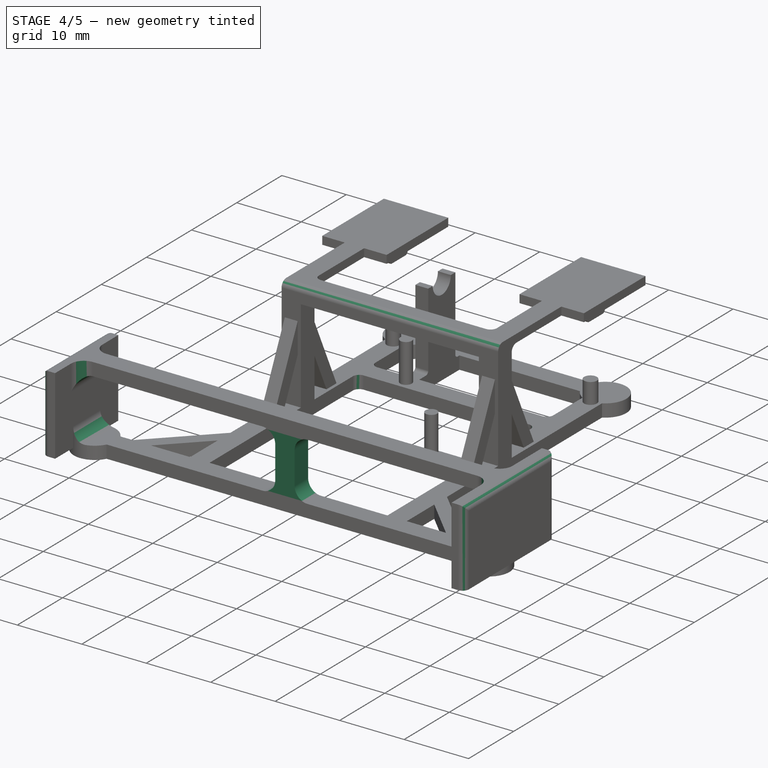
[diagram: stage 4 of 5 — iso view after this stage's code; geometry added in this stage tinted green]
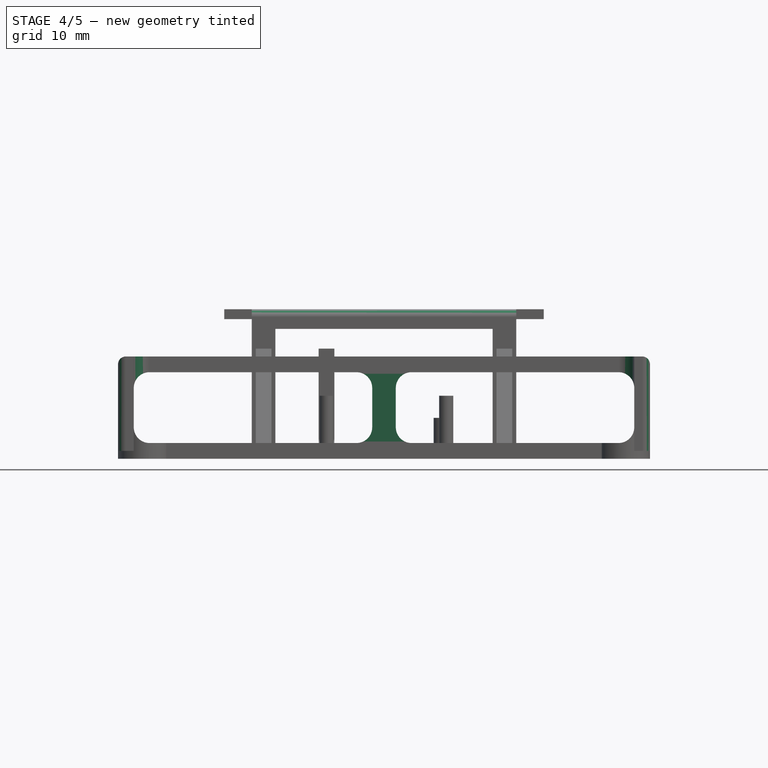
[diagram: stage 4 of 5 — front view after this stage's code; geometry added in this stage tinted green]
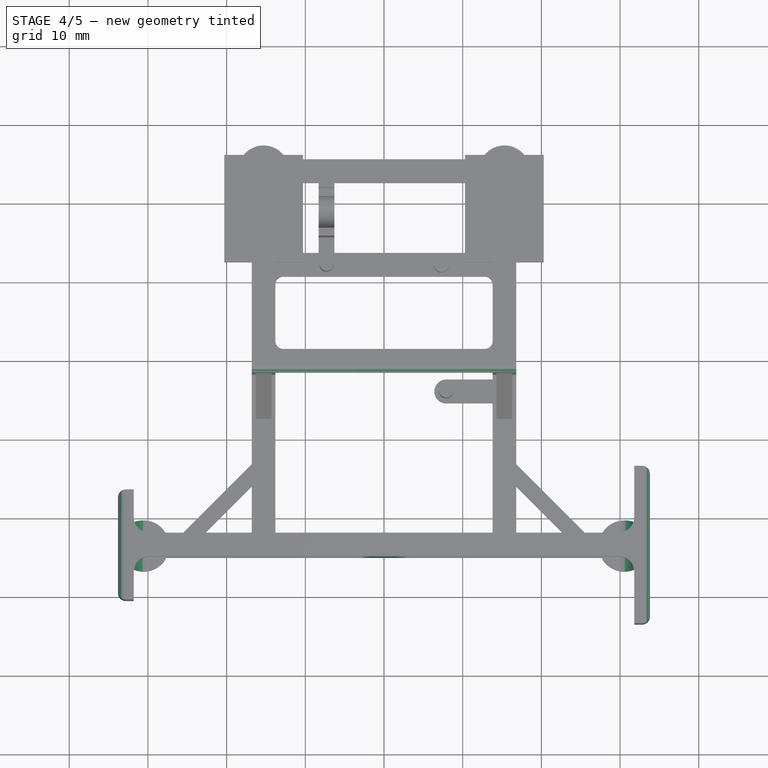
[diagram: stage 4 of 5 — top view after this stage's code; geometry added in this stage tinted green]
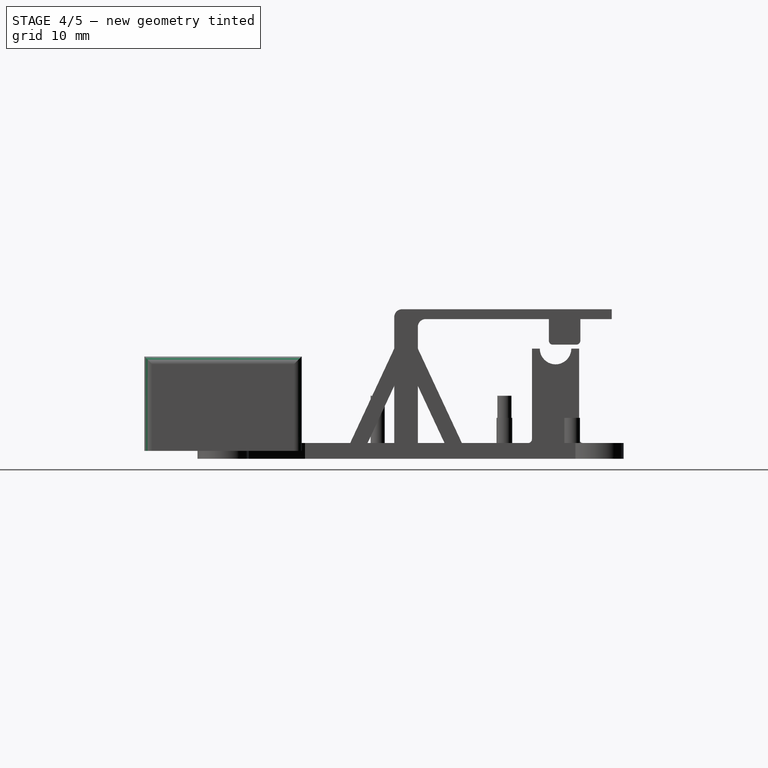
[diagram: stage 4 of 5 — right view after this stage's code; geometry added in this stage tinted green]
FEATURE [Sketcher::SketchObject] Sketch024
  ArcFitTolerance = 1e-06
  AttachmentSupport = -> [Pad019]
  ExternalGeometry = -> [Pad019]
  FullyConstrained = true
  MakeInternals = false
  MapMode = 5
  Placement = pos=(0,0,2) rot=(0,0,1;0rad)
  sketch-geometry (6):
    g0: GeomPoint [constr] X=1e-15 Y=-33.5 Z=0
    g1: LineSegment StartX=-1.5 StartY=-35 StartZ=0 EndX=-1.5 EndY=-32 EndZ=0
    g2: LineSegment StartX=-1.5 StartY=-32 StartZ=0 EndX=1.5 EndY=-32 EndZ=0
    g3: LineSegment StartX=1.5 StartY=-32 StartZ=0 EndX=1.5 EndY=-35 EndZ=0
    g4: LineSegment StartX=1.5 StartY=-35 StartZ=0 EndX=-1.5 EndY=-35 EndZ=0
    g5: GeomPoint [constr] X=1e-15 Y=-33.5 Z=0
  constraints (13):
    c: Symmetric(g-3,g-4,g0)
    c: Coincident(g1,g2)
    c: Coincident(g2,g3)
    c: Coincident(g3,g4)
    c: Coincident(g4,g1)
    c: Vertical(g1)
    c: Vertical(g3)
    c: Horizontal(g2)
    c: Horizontal(g4)
    c: Symmetric(g3,g1,g5)
    c: Coincident(g5,g0)
    c: DistanceY(g1,g1) = 3
    c: Distance(g4,g4) = 3
FEATURE [PartDesign::Pad] Pad020
  BaseFeature = -> Pad019
  Direction = (0,0,1)
  Length = 10
  Length2 = 10
  Profile = -> Sketch024
  ReferenceAxis = -> Sketch024 [N_Axis]
  Refine = true
  Suppressed = false
  Type = 2
FEATURE [Sketcher::SketchObject] Sketch025
  ArcFitTolerance = 1e-06
  AttachmentSupport = -> [Pad020]
  ExternalGeometry = -> [Pad020]
  FullyConstrained = true
  MakeInternals = false
  MapMode = 5
  Placement = pos=(-33.8,0,0) rot=(0.57735,-0.57735,-0.57735;2.0944rad)
  sketch-geometry (19):
    g0: Circle CenterX=29 CenterY=10.5 CenterZ=0 NormalX=0 NormalY=0 NormalZ=1 AngleXU=0 Radius=1.375
    g1: Circle CenterX=29 CenterY=3.5 CenterZ=0 NormalX=0 NormalY=0 NormalZ=1 AngleXU=0 Radius=1.375
    g2: Circle CenterX=29 CenterY=7 CenterZ=0 NormalX=0 NormalY=0 NormalZ=1 AngleXU=0 Radius=1.375
    g3: LineSegment [constr] StartX=29 StartY=10.5 StartZ=0 EndX=29 EndY=3.5 EndZ=0
    g4: GeomPoint [constr] X=29 Y=7 Z=0
    g5: Circle CenterX=38 CenterY=10.5 CenterZ=0 NormalX=0 NormalY=0 NormalZ=1 AngleXU=0 Radius=1.375
    g6: Circle CenterX=38 CenterY=3.5 CenterZ=0 NormalX=0 NormalY=0 NormalZ=1 AngleXU=0 Radius=1.375
    g7: Circle CenterX=38 CenterY=7 CenterZ=0 NormalX=0 NormalY=0 NormalZ=1 AngleXU=0 Radius=1.375
    g8: Circle CenterX=33.5 CenterY=10.5 CenterZ=0 NormalX=0 NormalY=0 NormalZ=1 AngleXU=0 Radius=1.375
    g9: Circle CenterX=33.5 CenterY=3.5 CenterZ=0 NormalX=0 NormalY=0 NormalZ=1 AngleXU=0 Radius=1.375
    g10: Circle CenterX=33.5 CenterY=7 CenterZ=0 NormalX=0 NormalY=0 NormalZ=1 AngleXU=0 Radius=1.375
    g11: LineSegment [constr] StartX=29 StartY=10.5 StartZ=0 EndX=38 EndY=10.5 EndZ=0
    g12: GeomPoint [constr] X=33.5 Y=10.5 Z=0
    g13: LineSegment [constr] StartX=33.5 StartY=10.5 StartZ=0 EndX=33.5 EndY=3.5 EndZ=0
    g14: GeomPoint [constr] X=33.5 Y=7 Z=0
    g15: LineSegment [constr] StartX=38 StartY=10.5 StartZ=0 EndX=38 EndY=3.5 EndZ=0
    g16: GeomPoint [constr] X=38 Y=7 Z=0
    g17: LineSegment [constr] StartX=29 StartY=3.5 StartZ=0 EndX=38 EndY=3.5 EndZ=0
    g18: GeomPoint [constr] X=33.5 Y=3.5 Z=0
  constraints (37):
    c: Diameter(g0) = 2.75
    c: DistanceY(g0,g-4) = 2.5
    c: DistanceX(g-4,g0) = 2.5
    c: DistanceY(g-3,g1) = 2.5
    c: Coincident(g3,g0)
    c: Coincident(g3,g1)
    c: Symmetric(g3,g3,g4)
    c: Coincident(g2,g4)
    c: Vertical(g3)
    c: Horizontal(g11)
    c: Coincident(g11,g0)
    c: Coincident(g11,g5)
    c: Symmetric(g11,g11,g12)
    c: Coincident(g8,g12)
    c: DistanceX(g5,g-4) = 2.5
    c: Vertical(g13)
    c: Symmetric(g13,g13,g14)
    c: Coincident(g13,g8)
    c: Coincident(g13,g9)
    c: Coincident(g14,g10)
    c: Symmetric(g15,g15,g16)
    c: Coincident(g15,g5)
    c: Coincident(g15,g6)
    c: Coincident(g16,g7)
    c: Horizontal(g17)
    c: Symmetric(g17,g17,g18)
    c: Coincident(g17,g1)
    c: Coincident(g18,g9)
    c: Coincident(g17,g6)
    c: Equal(g0,g8)
    c: Equal(g0,g5)
    c: Equal(g0,g2)
    c: Equal(g0,g10)
    c: Equal(g0,g7)
    c: Equal(g0,g1)
    c: Equal(g0,g9)
    c: Equal(g0,g6)
FEATURE [PartDesign::Fillet] Fillet
  Base = -> Pad020 [Edge329,Edge341,Edge340,Edge325,Edge332,Edge335]
  BaseFeature = -> Pad020
  Radius = 1
  Refine = true
  SupportTransform = false
  Suppressed = false
  UseAllEdges = false
FEATURE [PartDesign::Fillet] Fillet001
  Base = -> Fillet [Edge12,Edge18,Edge121,Edge125,Edge178,Edge177,Edge73,Edge45,Edge69,Edge79,Edge17,Edge19]
  BaseFeature = -> Fillet
  Radius = 2
  Refine = true
  SupportTransform = false
  Suppressed = false
  UseAllEdges = false
FEATURE [PartDesign::Fillet] Fillet002
  Base = -> Fillet001 [Edge298,Edge211,Edge293,Edge294,Edge296]
  BaseFeature = -> Fillet001
  Radius = 1
  Refine = true
  SupportTransform = false
  Suppressed = false
  UseAllEdges = false
FEATURE [PartDesign::Fillet] Fillet003
  Base = -> Fillet002 [Edge62,Edge61,Edge399,Edge396,Edge237,Edge241]
  BaseFeature = -> Fillet002
  Radius = 0.5
  Refine = true
  SupportTransform = false
  Suppressed = false
  UseAllEdges = false
FEATURE [PartDesign::Fillet] Fillet004
  Base = -> Fillet003 [Edge67,Edge106,Edge54,Edge115]
  BaseFeature = -> Fillet003
  Radius = 1
  Refine = true
  SupportTransform = false
  Suppressed = false
  UseAllEdges = false
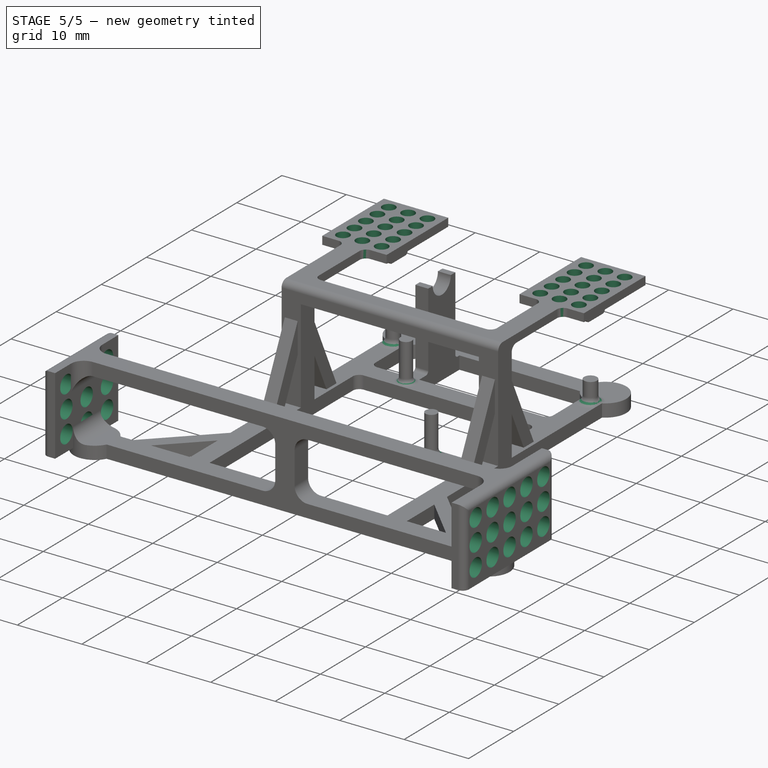
[diagram: stage 5 of 5 — iso view after this stage's code; geometry added in this stage tinted green]
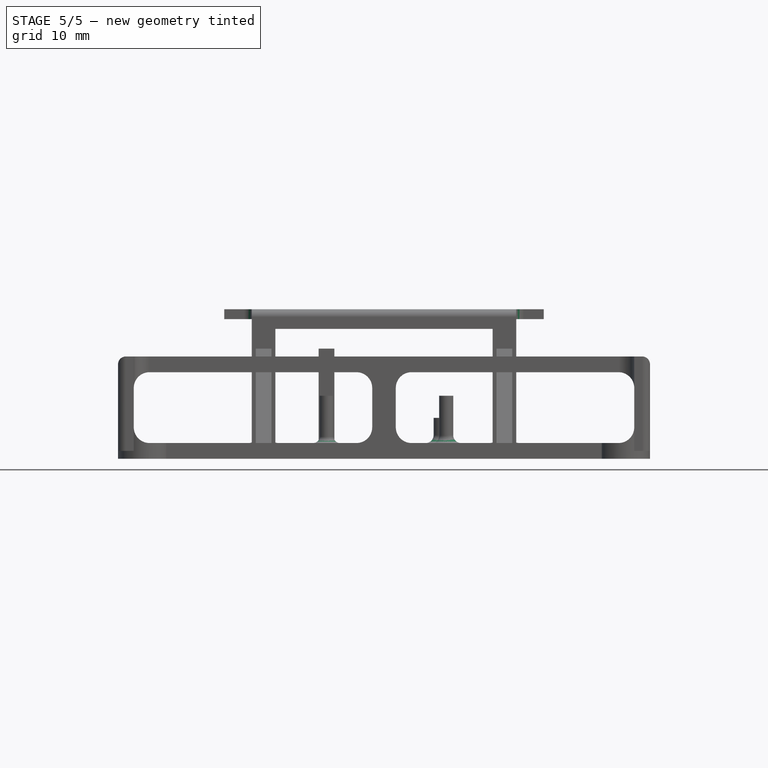
[diagram: stage 5 of 5 — front view after this stage's code; geometry added in this stage tinted green]
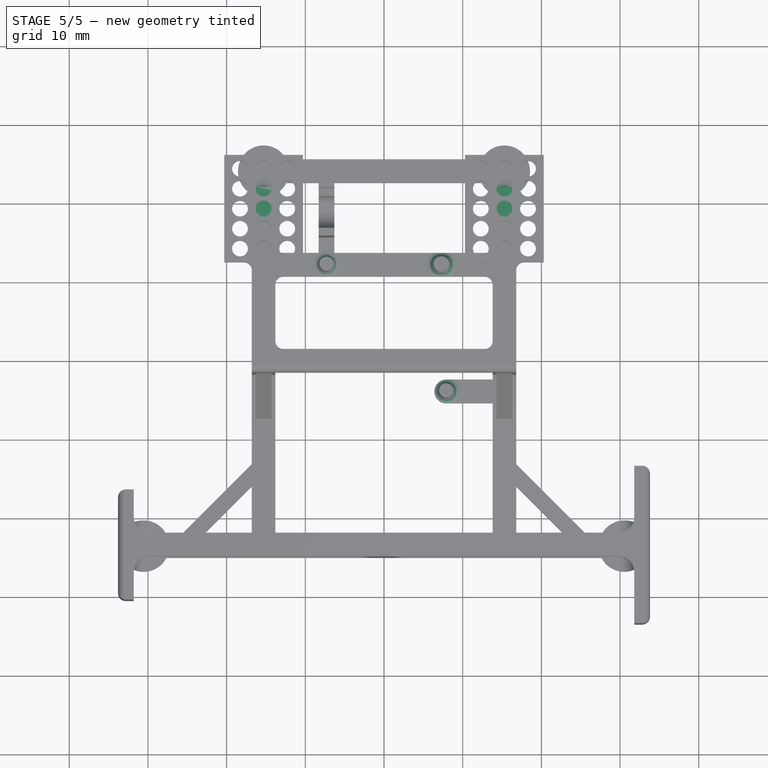
[diagram: stage 5 of 5 — top view after this stage's code; geometry added in this stage tinted green]
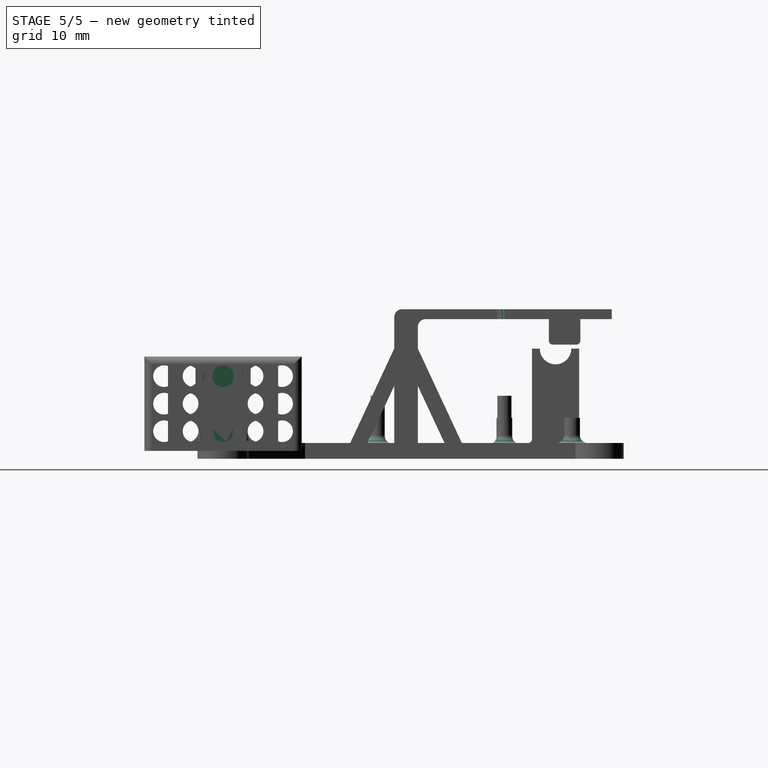
[diagram: stage 5 of 5 — right view after this stage's code; geometry added in this stage tinted green]
FEATURE [PartDesign::Fillet] Fillet005
  Base = -> Fillet004 [Edge157,Edge349,Edge342,Edge133]
  BaseFeature = -> Fillet004
  Radius = 1
  Refine = true
  SupportTransform = false
  Suppressed = false
  UseAllEdges = false
FEATURE [PartDesign::Fillet] Fillet006
  Base = -> Fillet005 [Edge144,Edge94,Edge100,Edge95]
  BaseFeature = -> Fillet005
  Radius = 1
  Refine = true
  SupportTransform = false
  Suppressed = false
  UseAllEdges = false
FEATURE [PartDesign::Fillet] Fillet007
  Base = -> Fillet006 [Edge225]
  BaseFeature = -> Fillet006
  Radius = 0.8
  Refine = true
  SupportTransform = false
  Suppressed = false
  UseAllEdges = false
FEATURE [Sketcher::SketchObject] Sketch026
  ArcFitTolerance = 1e-06
  AttachmentSupport = -> [Fillet007]
  FullyConstrained = true
  MakeInternals = false
  MapMode = 5
  Placement = pos=(33.8,0,0) rot=(0.57735,0.57735,0.57735;2.0944rad)
  sketch-geometry (35):
    g0: Circle CenterX=-41 CenterY=10.5 CenterZ=0 NormalX=0 NormalY=0 NormalZ=1 AngleXU=0 Radius=1.375
    g1: Circle CenterX=-41 CenterY=7 CenterZ=0 NormalX=0 NormalY=0 NormalZ=1 AngleXU=0 Radius=1.375
    g2: Circle CenterX=-41 CenterY=3.5 CenterZ=0 NormalX=0 NormalY=0 NormalZ=1 AngleXU=0 Radius=1.375
    g3: Circle CenterX=-37.25 CenterY=10.5 CenterZ=0 NormalX=0 NormalY=0 NormalZ=1 AngleXU=0 Radius=1.375
    g4: Circle CenterX=-33.5 CenterY=10.5 CenterZ=0 NormalX=0 NormalY=0 NormalZ=1 AngleXU=0 Radius=1.375
    g5: Circle CenterX=-29.75 CenterY=10.5 CenterZ=0 NormalX=0 NormalY=0 NormalZ=1 AngleXU=0 Radius=1.375
    g6: Circle CenterX=-26 CenterY=10.5 CenterZ=0 NormalX=0 NormalY=0 NormalZ=1 AngleXU=0 Radius=1.375
    g7: Circle CenterX=-37.25 CenterY=7 CenterZ=0 NormalX=0 NormalY=0 NormalZ=1 AngleXU=0 Radius=1.375
    g8: Circle CenterX=-37.25 CenterY=3.5 CenterZ=0 NormalX=0 NormalY=0 NormalZ=1 AngleXU=0 Radius=1.375
    g9: Circle CenterX=-33.5 CenterY=7 CenterZ=0 NormalX=0 NormalY=0 NormalZ=1 AngleXU=0 Radius=1.375
    g10: Circle CenterX=-33.5 CenterY=3.5 CenterZ=0 NormalX=0 NormalY=0 NormalZ=1 AngleXU=0 Radius=1.375
    g11: Circle CenterX=-29.75 CenterY=7 CenterZ=0 NormalX=0 NormalY=0 NormalZ=1 AngleXU=0 Radius=1.375
    g12: Circle CenterX=-29.75 CenterY=3.5 CenterZ=0 NormalX=0 NormalY=0 NormalZ=1 AngleXU=0 Radius=1.375
    g13: Circle CenterX=-26 CenterY=7 CenterZ=0 NormalX=0 NormalY=0 NormalZ=1 AngleXU=0 Radius=1.375
    g14: Circle CenterX=-26 CenterY=3.5 CenterZ=0 NormalX=0 NormalY=0 NormalZ=1 AngleXU=0 Radius=1.375
    g15: LineSegment [constr] StartX=-41 StartY=10.5 StartZ=0 EndX=-41 EndY=3.5 EndZ=0
    g16: GeomPoint [constr] X=-41 Y=7 Z=0
    g17: LineSegment [constr] StartX=-41 StartY=10.5 StartZ=0 EndX=-26 EndY=10.5 EndZ=0
    g18: GeomPoint [constr] X=-33.5 Y=10.5 Z=0
    g19: LineSegment [constr] StartX=-33.5 StartY=11 StartZ=0 EndX=-41 EndY=11 EndZ=0
    g20: LineSegment [constr] StartX=-33.5 StartY=10.5 StartZ=0 EndX=-33.5 EndY=11 EndZ=0
    g21: LineSegment [constr] StartX=-41 StartY=11 StartZ=0 EndX=-41 EndY=10.5 EndZ=0
    g22: GeomPoint [constr] X=-37.25 Y=11 Z=0
    g23: LineSegment [constr] StartX=-37.25 StartY=11 StartZ=0 EndX=-37.25 EndY=10.5 EndZ=0
    g24: LineSegment [constr] StartX=-29.75 StartY=10.5 StartZ=0 EndX=-29.75 EndY=11 EndZ=0
    g25: LineSegment [constr] StartX=-26 StartY=10.5 StartZ=0 EndX=-26 EndY=11 EndZ=0
    g26: LineSegment [constr] StartX=-33.5 StartY=11 StartZ=0 EndX=-26 EndY=11 EndZ=0
    g27: GeomPoint [constr] X=-29.75 Y=11 Z=0
    g28: LineSegment [constr] StartX=-26 StartY=10.5 StartZ=0 EndX=-26 EndY=3.5 EndZ=0
    g29: LineSegment [constr] StartX=-41 StartY=7 StartZ=0 EndX=-26 EndY=7 EndZ=0
    g30: LineSegment [constr] StartX=-41 StartY=3.5 StartZ=0 EndX=-26 EndY=3.5 EndZ=0
    g31: LineSegment [constr] StartX=-37.25 StartY=10.5 StartZ=0 EndX=-37.25 EndY=3.5 EndZ=0
    g32: LineSegment [constr] StartX=-33.5 StartY=10.5 StartZ=0 EndX=-33.5 EndY=3.5 EndZ=0
    g33: LineSegment [constr] StartX=-29.75 StartY=10.5 StartZ=0 EndX=-29.75 EndY=3.5 EndZ=0
    g34: LineSegment [constr] StartX=-26 StartY=10.5 StartZ=0 EndX=-26 EndY=3.5 EndZ=0
  constraints (79):
    c: Diameter(g0) = 2.75
    c: DistanceX(g-4,g0) = 2.5
    c: DistanceY(g0,g-4) = 2.5
    c: Equal(g0, g3-g6) x4
    c: Equal(g0,g1)
    c: Equal(g0,g7)
    c: Equal(g0,g9)
    c: Equal(g0,g11)
    c: Equal(g0,g13)
    c: Equal(g0,g2)
    c: Equal(g0,g8)
    c: Equal(g0,g10)
    c: Equal(g0,g12)
    c: Equal(g0,g14)
    c: DistanceY(g-3,g2) = 2.5
    c: Symmetric(g15,g15,g16)
    c: Coincident(g15,g0)
    c: Coincident(g15,g2)
    c: Coincident(g16,g1)
    c: DistanceX(g6,g-4) = 2.5
    c: Coincident(g17,g0)
    c: Coincident(g17,g6)
    c: PointOnObject(g3,g17)
    c: PointOnObject(g5,g17)
    c: Symmetric(g17,g17,g18)
    c: Coincident(g4,g18)
    c: Horizontal(g19)
    c: Vertical(g20)
    c: Vertical(g21)
    c: Coincident(g19,g21)
    c: Coincident(g19,g20)
    c: Symmetric(g19,g19,g22)
    c: Vertical(g23)
    c: Coincident(g23,g22)
    c: Coincident(g23,g3)
    c: Coincident(g20,g4)
    c: Coincident(g21,g0)
    c: Distance(g23,g23) = 0.5
    c: Vertical(g24)
    c: Vertical(g25)
    c: Coincident(g24,g5)
    c: Coincident(g25,g6)
    c: Horizontal(g26)
    c: Symmetric(g26,g26,g27)
    c: Coincident(g26,g19)
    c: Coincident(g26,g25)
    c: Coincident(g24,g27)
    c: Coincident(g28,g6)
    c: PointOnObject(g13,g28)
    c: Coincident(g28,g14)
    c: Vertical(g28)
    c: Coincident(g29,g1)
    c: Coincident(g29,g13)
    c: Horizontal(g29)
    c: PointOnObject(g11,g29)
    c: PointOnObject(g9,g29)
    c: PointOnObject(g7,g29)
    c: Horizontal(g30)
    c: Coincident(g30,g2)
    c: Coincident(g30,g14)
    c: PointOnObject(g8,g30)
    c: PointOnObject(g10,g30)
    c: PointOnObject(g12,g30)
    c: Vertical(g31)
    c: Vertical(g32)
    c: Vertical(g33)
    c: Coincident(g31,g3)
    c: Coincident(g31,g8)
    c: PointOnObject(g7,g31)
    c: Coincident(g32,g4)
    c: PointOnObject(g9,g32)
    c: Coincident(g32,g10)
    c: Coincident(g33,g5)
    c: PointOnObject(g11,g33)
    c: Coincident(g33,g12)
    c: Coincident(g34,g6)
    c: Coincident(g34,g14)
    c: Horizontal(g17)
    c: Vertical(g15)
FEATURE [Sketcher::SketchObject] Sketch027
  ArcFitTolerance = 1e-06
  AttachmentSupport = -> [Fillet007]
  ExternalGeometry = -> [Fillet007]
  FullyConstrained = true
  MakeInternals = false
  MapMode = 5
  Placement = pos=(0,0,19) rot=(0,0,1;0rad)
  sketch-geometry (49):
    g0: Circle CenterX=-18.3 CenterY=14.15 CenterZ=0 NormalX=0 NormalY=0 NormalZ=1 AngleXU=0 Radius=1
    g1: Circle CenterX=-15.3 CenterY=14.15 CenterZ=0 NormalX=0 NormalY=0 NormalZ=1 AngleXU=0 Radius=1
    g2: Circle CenterX=-12.3 CenterY=14.15 CenterZ=0 NormalX=0 NormalY=0 NormalZ=1 AngleXU=0 Radius=1
    g3: LineSegment [constr] StartX=-18.3 StartY=14.15 StartZ=0 EndX=-12.3 EndY=14.15 EndZ=0
    g4: GeomPoint [constr] X=-15.3 Y=14.15 Z=0
    g5: Circle CenterX=-18.3 CenterY=11.6125 CenterZ=0 NormalX=0 NormalY=0 NormalZ=1 AngleXU=0 Radius=1
    g6: Circle CenterX=-15.3 CenterY=11.6125 CenterZ=0 NormalX=0 NormalY=0 NormalZ=1 AngleXU=0 Radius=1
    g7: Circle CenterX=-12.3 CenterY=11.6125 CenterZ=0 NormalX=0 NormalY=0 NormalZ=1 AngleXU=0 Radius=1
    g8: Circle CenterX=-18.3 CenterY=9.075 CenterZ=0 NormalX=0 NormalY=0 NormalZ=1 AngleXU=0 Radius=1
    g9: Circle CenterX=-15.3 CenterY=9.075 CenterZ=0 NormalX=0 NormalY=0 NormalZ=1 AngleXU=0 Radius=1
    g10: Circle CenterX=-12.3 CenterY=9.075 CenterZ=0 NormalX=0 NormalY=0 NormalZ=1 AngleXU=0 Radius=1
    g11: Circle CenterX=-18.3 CenterY=6.5375 CenterZ=0 NormalX=0 NormalY=0 NormalZ=1 AngleXU=0 Radius=1
    g12: Circle CenterX=-15.3 CenterY=6.5375 CenterZ=0 NormalX=0 NormalY=0 NormalZ=1 AngleXU=0 Radius=1
    g13: Circle CenterX=-12.3 CenterY=6.5375 CenterZ=0 NormalX=0 NormalY=0 NormalZ=1 AngleXU=0 Radius=1
    g14: Circle CenterX=-18.3 CenterY=4 CenterZ=0 NormalX=0 NormalY=0 NormalZ=1 AngleXU=0 Radius=1
    g15: Circle CenterX=-15.3 CenterY=4 CenterZ=0 NormalX=0 NormalY=0 NormalZ=1 AngleXU=0 Radius=1
    g16: Circle CenterX=-12.3 CenterY=4 CenterZ=0 NormalX=0 NormalY=0 NormalZ=1 AngleXU=0 Radius=1
    g17: LineSegment [constr] StartX=-18.3 StartY=14.15 StartZ=0 EndX=-18.3 EndY=4 EndZ=0
    g18: LineSegment [constr] StartX=-15.3 StartY=14.15 StartZ=0 EndX=-15.3 EndY=4 EndZ=0
    g19: LineSegment [constr] StartX=-18.3 StartY=4 StartZ=0 EndX=-12.3 EndY=4 EndZ=0
    g20: LineSegment [constr] StartX=-12.3 StartY=14.15 StartZ=0 EndX=-12.3 EndY=4 EndZ=0
    g21: LineSegment [constr] StartX=-18.3 StartY=11.6125 StartZ=0 EndX=-12.3 EndY=11.6125 EndZ=0
    g22: LineSegment [constr] StartX=-18.3 StartY=9.075 StartZ=0 EndX=-12.3 EndY=9.075 EndZ=0
    g23: LineSegment [constr] StartX=-18.3 StartY=6.5375 StartZ=0 EndX=-12.3 EndY=6.5375 EndZ=0
    g24: GeomPoint [constr] X=-18.3 Y=9.075 Z=0
    g25: LineSegment [constr] StartX=-18.3 StartY=11.6125 StartZ=0 EndX=-19.8 EndY=11.6125 EndZ=0
    g26: LineSegment [constr] StartX=-18.3 StartY=14.15 StartZ=0 EndX=-19.8 EndY=14.15 EndZ=0
    g27: LineSegment [constr] StartX=-18.3 StartY=9.075 StartZ=0 EndX=-19.8 EndY=9.075 EndZ=0
    g28: LineSegment [constr] StartX=-19.8 StartY=14.15 StartZ=0 EndX=-19.8 EndY=9.075 EndZ=0
    g29: GeomPoint [constr] X=-19.8 Y=11.6125 Z=0
    g30: LineSegment [constr] StartX=-18.3 StartY=4 StartZ=0 EndX=-19.8 EndY=4 EndZ=0
    g31: LineSegment [constr] StartX=-19.8 StartY=9.075 StartZ=0 EndX=-19.8 EndY=4 EndZ=0
    g32: GeomPoint [constr] X=-19.8 Y=6.5375 Z=0
    g33: LineSegment [constr] StartX=-18.3 StartY=6.5375 StartZ=0 EndX=-19.8 EndY=6.5375 EndZ=0
    g34: Circle CenterX=12.3 CenterY=14.15 CenterZ=0 NormalX=0 NormalY=0 NormalZ=1 AngleXU=0 Radius=1
    g35: Circle CenterX=15.3 CenterY=14.15 CenterZ=0 NormalX=0 NormalY=0 NormalZ=1 AngleXU=0 Radius=1
    g36: Circle CenterX=18.3 CenterY=14.15 CenterZ=0 NormalX=0 NormalY=0 NormalZ=1 AngleXU=0 Radius=1
    g37: Circle CenterX=12.3 CenterY=11.6125 CenterZ=0 NormalX=0 NormalY=0 NormalZ=1 AngleXU=0 Radius=1
    g38: Circle CenterX=15.3 CenterY=11.6125 CenterZ=0 NormalX=0 NormalY=0 NormalZ=1 AngleXU=0 Radius=1
    g39: Circle CenterX=18.3 CenterY=11.6125 CenterZ=0 NormalX=0 NormalY=0 NormalZ=1 AngleXU=0 Radius=1
    g40: Circle CenterX=12.3 CenterY=9.075 CenterZ=0 NormalX=0 NormalY=0 NormalZ=1 AngleXU=0 Radius=1
    g41: Circle CenterX=15.3 CenterY=9.075 CenterZ=0 NormalX=0 NormalY=0 NormalZ=1 AngleXU=0 Radius=1
    g42: Circle CenterX=18.3 CenterY=9.075 CenterZ=0 NormalX=0 NormalY=0 NormalZ=1 AngleXU=0 Radius=1
    g43: Circle CenterX=12.3 CenterY=6.5375 CenterZ=0 NormalX=0 NormalY=0 NormalZ=1 AngleXU=0 Radius=1
    g44: Circle CenterX=15.3 CenterY=6.5375 CenterZ=0 NormalX=0 NormalY=0 NormalZ=1 AngleXU=0 Radius=1
    g45: Circle CenterX=18.3 CenterY=6.5375 CenterZ=0 NormalX=0 NormalY=0 NormalZ=1 AngleXU=0 Radius=1
    g46: Circle CenterX=12.3 CenterY=4 CenterZ=0 NormalX=0 NormalY=0 NormalZ=1 AngleXU=0 Radius=1
    g47: Circle CenterX=15.3 CenterY=4 CenterZ=0 NormalX=0 NormalY=0 NormalZ=1 AngleXU=0 Radius=1
    g48: Circle CenterX=18.3 CenterY=4 CenterZ=0 NormalX=0 NormalY=0 NormalZ=1 AngleXU=0 Radius=1
  constraints (87):
    c: Diameter(g0) = 2
    c: DistanceX(g-4,g0) = 2
    c: DistanceY(g0,g-4) = 1.75
    c: Equal(g0,g1)
    c: Equal(g0,g2)
    c: DistanceX(g2,g-4) = 2
    c: Horizontal(g3)
    c: Symmetric(g3,g3,g4)
    c: Coincident(g4,g1)
    c: Coincident(g3,g0)
    c: Coincident(g3,g2)
    c: Equal(g0, g5-g16) x12
    c: DistanceY(g-3,g14) = 1.75
    c: Vertical(g17)
    c: Vertical(g18)
    c: Coincident(g18,g1)
    c: Coincident(g18,g15)
    c: Horizontal(g19)
    c: Coincident(g19,g14)
    c: Coincident(g19,g16)
    c: Coincident(g17,g0)
    c: Coincident(g17,g14)
    c: PointOnObject(g15,g19)
    c: PointOnObject(g6,g18)
    c: PointOnObject(g9,g18)
    c: PointOnObject(g12,g18)
    c: PointOnObject(g5,g17)
    c: PointOnObject(g11,g17)
    c: Vertical(g20)
    c: Coincident(g20,g16)
    c: Coincident(g20,g2)
    c: PointOnObject(g7,g20)
    c: PointOnObject(g10,g20)
    c: PointOnObject(g13,g20)
    c: Coincident(g21,g5)
    c: Horizontal(g21)
    c: Coincident(g7,g21)
    c: Coincident(g22,g8)
    c: Coincident(g22,g10)
    c: Horizontal(g22)
    c: Coincident(g23,g11)
    c: Horizontal(g23)
    c: Coincident(g23,g13)
    c: PointOnObject(g6,g21)
    c: PointOnObject(g9,g22)
    c: PointOnObject(g12,g23)
    c: Symmetric(g17,g17,g24)
    c: Coincident(g8,g24)
    c: Coincident(g25,g5)
    c: Horizontal(g25)
    c: Coincident(g26,g0)
    c: Horizontal(g26)
    c: Coincident(g27,g8)
    c: Horizontal(g27)
    c: Vertical(g28)
    c: Coincident(g28,g26)
    c: Coincident(g28,g27)
    c: Symmetric(g28,g28,g29)
    c: Coincident(g25,g29)
    c: Coincident(g30,g14)
    c: Horizontal(g30)
    c: Coincident(g31,g27)
    c: Coincident(g31,g30)
    c: Vertical(g31)
    c: Symmetric(g31,g31,g32)
    c: Coincident(g33,g11)
    c: Coincident(g33,g32)
    c: Horizontal(g33)
    c: DistanceX(g27,g27) = 1.5
    c: Equal(g0, g34-g46) x13
    c: Equal(g1,g47)
    c: Equal(g1,g48)
    c: Symmetric(g2,g34,g-2)
    c: Symmetric(g1,g35,g-2)
    c: Symmetric(g0,g36,g-2)
    c: Symmetric(g7,g37,g-2)
    c: Symmetric(g6,g38,g-2)
    c: Symmetric(g5,g39,g-2)
    c: Symmetric(g40,g10,g-2)
    c: Symmetric(g41,g9,g-2)
    c: Symmetric(g42,g8,g-2)
    c: Symmetric(g43,g13,g-2)
    c: Symmetric(g44,g12,g-2)
    c: Symmetric(g45,g11,g-2)
    c: Symmetric(g46,g16,g-2)
    c: Symmetric(g47,g15,g-2)
    c: Symmetric(g48,g14,g-2)
FEATURE [PartDesign::Pocket] Pocket001
  BaseFeature = -> Fillet007
  Direction = (1,0,0)
  Length = 0
  Length2 = 5
  Profile = -> Sketch025
  ReferenceAxis = -> Sketch025 [N_Axis]
  Refine = true
  Suppressed = false
  Type = 3
  UpToFace = -> Fillet007 [Face115]
FEATURE [PartDesign::Pocket] Pocket002
  BaseFeature = -> Pocket001
  Direction = (-1,0,0)
  Length = 0
  Length2 = 5
  Profile = -> Sketch026
  ReferenceAxis = -> Sketch026 [N_Axis]
  Refine = true
  Suppressed = false
  Type = 3
  UpToFace = -> Pocket001 [Face109]
FEATURE [PartDesign::Pocket] Pocket003
  BaseFeature = -> Pocket002
  Direction = (0,0,-1)
  Length = 0
  Length2 = 5
  Profile = -> Sketch027
  ReferenceAxis = -> Sketch027 [N_Axis]
  Refine = true
  Suppressed = false
  Type = 3
  UpToFace = -> Pocket002 [Face75]
FEATURE [PartDesign::Body] Body
  AllowCompound = false
  Group = -> [Sketch,Pad,Sketch001,Pad001,Sketch002,Pad002,Sketch003,Pad003,Sketch004,Pad004,Sketch005,Pad005,Sketch006,Pad006,Sketch007,Pad007,Sketch008,Pad008,Sketch009,Pocket,Sketch010,Pad009,Sketch011,Pad010,Sketch019,Pad015,Sketch020,Pad016,Sketch021,Pad017,Sketch022,Pad018,Sketch023,Pad019,Sketch024,Pad020,Sketch025,Sketch026,Fillet,Fillet001,Fillet002,Fillet003,Fillet004,Fillet005,Fillet006,Fillet007,+4 more]
  Origin = -> Origin
  Tip = -> Pocket003
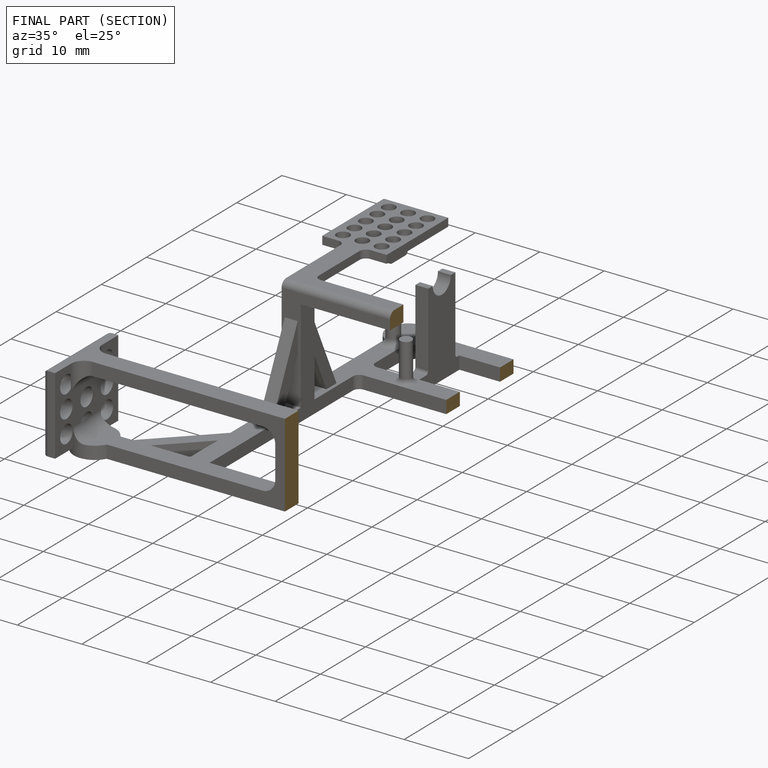
[diagram: finished part — half-section view (interior)]
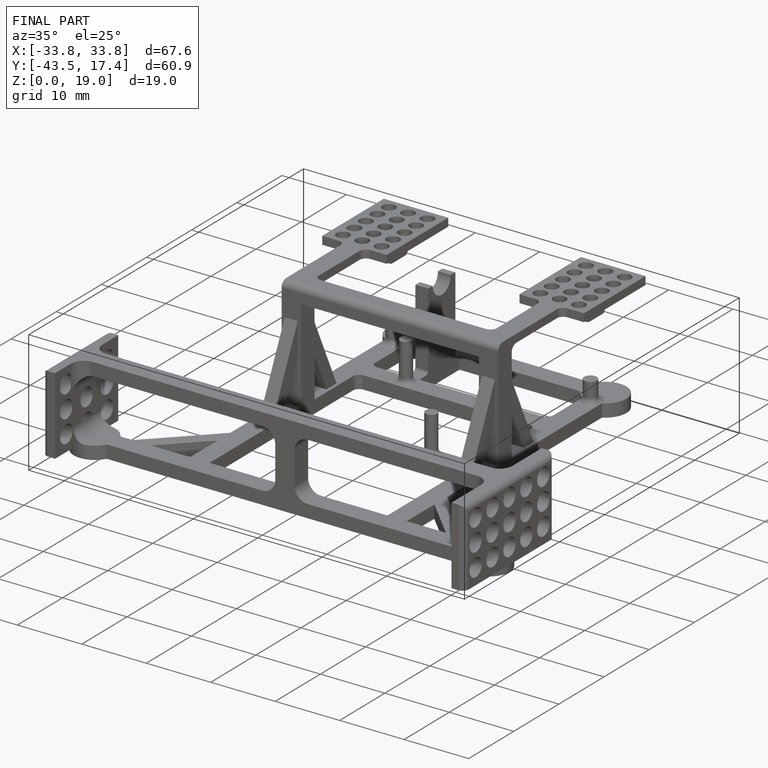
[diagram: finished part — iso view with bounding-box wireframe]
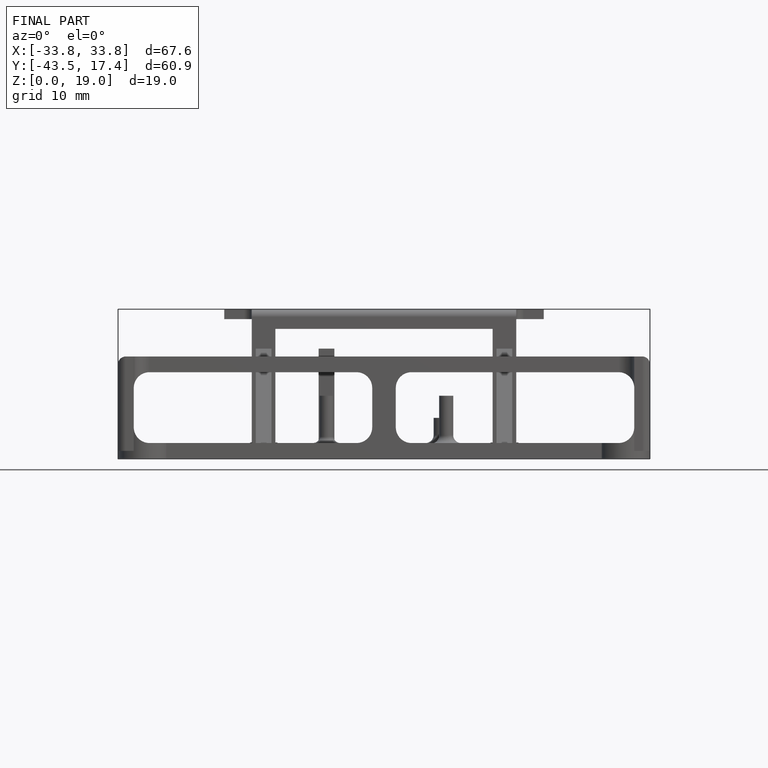
[diagram: finished part — front view with bounding-box wireframe]
